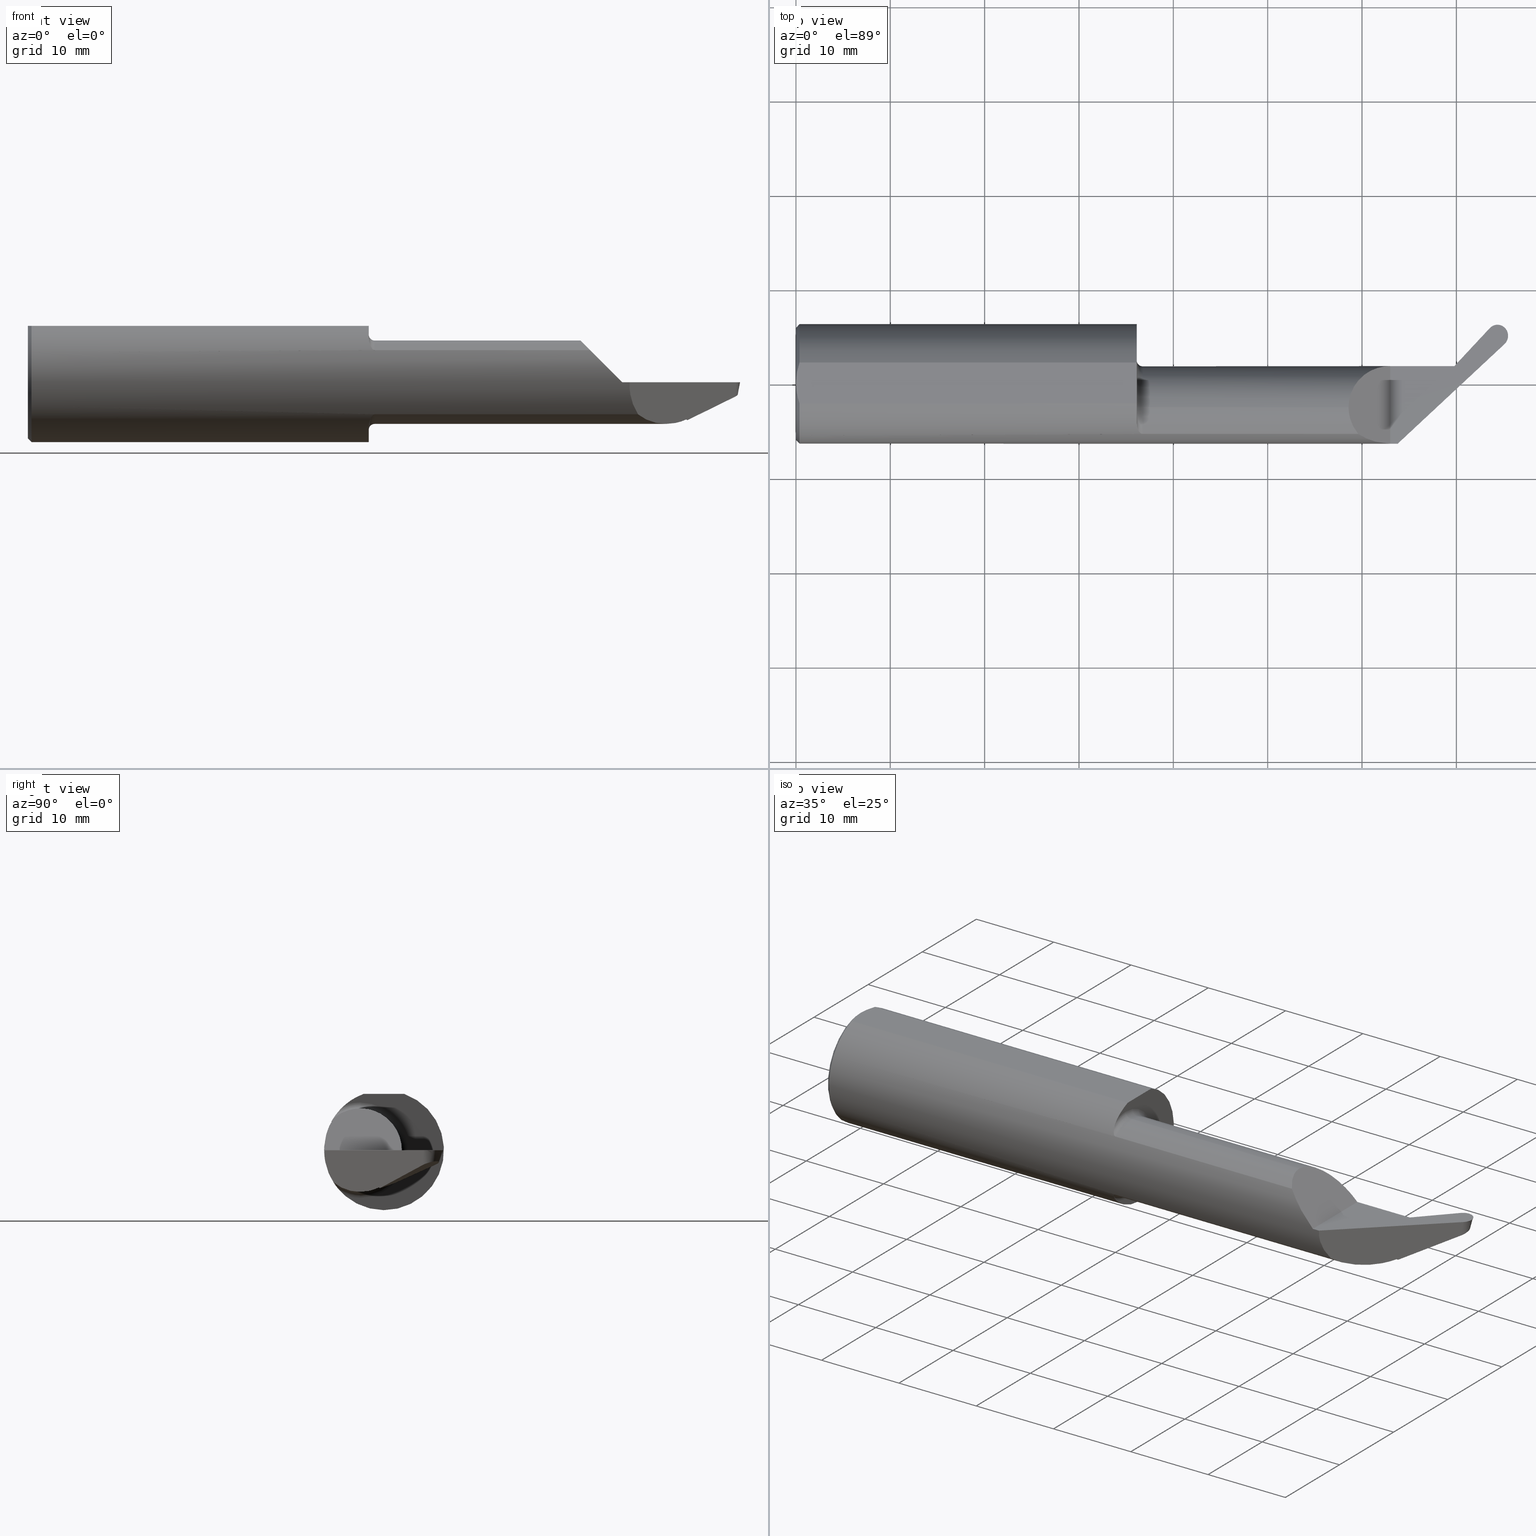
[diagram: canonical four-view strip — front | top / right | iso, engineering-drawing reading convention]
A machine part, canonical four-view strip (front | top / right | iso — engineering-drawing reading convention). The complete STEP part file that produces these views, byte-faithful:
ISO-10303-21;
HEADER;
FILE_DESCRIPTION (( 'STEP AP203' ),
    '1' );
FILE_NAME ('UP50062-24.STEP',
    '2025-06-18T21:04:55',
    ( '' ),
    ( '' ),
    'SwSTEP 2.0',
    'SolidWorks 2024',
    '' );
FILE_SCHEMA (( 'CONFIG_CONTROL_DESIGN' ));
ENDSEC;

DATA;
#1 = ORIENTED_EDGE ( 'NONE', *, *, #553, .F. ) ;
#2 = CARTESIAN_POINT ( 'NONE',  ( 2.508211166450760476, -0.2498500000000000443, -0.04776250763339680988 ) ) ;
#3 = CARTESIAN_POINT ( 'NONE',  ( 0.000000000000000000, 0.000000000000000000, 0.000000000000000000 ) ) ;
#4 = AXIS2_PLACEMENT_3D ( 'NONE', #523, #318, #189 ) ;
#5 = AXIS2_PLACEMENT_3D ( 'NONE', #478, #603, #557 ) ;
#6 = DIRECTION ( 'NONE',  ( 1.000000000000000000, 0.000000000000000000, 0.000000000000000000 ) ) ;
#7 = CC_DESIGN_DATE_AND_TIME_ASSIGNMENT ( #273, #201, ( #96 ) ) ;
#8 = CARTESIAN_POINT ( 'NONE',  ( 1.422000000000000597, -0.1692143377402382520, 0.1839442983303241075 ) ) ;
#9 = CARTESIAN_POINT ( 'NONE',  ( 2.955937092707650926, 0.1681739342129495440, -0.05813594538523057798 ) ) ;
#10 = CARTESIAN_POINT ( 'NONE',  ( 2.899611671649573008, 0.2375721085925628639, -5.549066237130534971E-17 ) ) ;
#11 = DIMENSIONAL_EXPONENTS ( 1.000000000000000000, 0.000000000000000000, 0.000000000000000000, 0.000000000000000000, 0.000000000000000000, 0.000000000000000000, 0.000000000000000000 ) ;
#12 = PERSON_AND_ORGANIZATION ( #227, #509 ) ;
#13 = CARTESIAN_POINT ( 'NONE',  ( 2.753503846750914530, -0.006450818874086416618, -0.1551777867982201131 ) ) ;
#14 = EDGE_CURVE ( 'NONE', #667, #313, #659, .T. ) ;
#15 = ORIENTED_EDGE ( 'NONE', *, *, #763, .T. ) ;
#16 = CARTESIAN_POINT ( 'NONE',  ( 0.000000000000000000, 0.000000000000000000, 0.2348499999999984211 ) ) ;
#17 = CARTESIAN_POINT ( 'NONE',  ( 1.439579013400958729, -0.2089922484211655385, 0.1369264698045204454 ) ) ;
#18 = CARTESIAN_POINT ( 'NONE',  ( 2.909024888715971535, 0.2236180659916154334, -0.05594011878732919191 ) ) ;
#19 = CARTESIAN_POINT ( 'NONE',  ( 2.763300752746059796, 0.02618643636907987127, -0.1442566840611754775 ) ) ;
#20 = ADVANCED_FACE ( 'NONE', ( #764 ), #779, .F. ) ;
#21 =( NAMED_UNIT ( * ) PLANE_ANGLE_UNIT ( ) SI_UNIT ( $, .RADIAN. ) );
#22 = CARTESIAN_POINT ( 'NONE',  ( 2.900081994275833353, 0.2132052924276078565, -0.06332589777077883564 ) ) ;
#23 = CARTESIAN_POINT ( 'NONE',  ( 1.421999999999999931, -0.1642165498247395994, -0.1883028073706252692 ) ) ;
#24 = CARTESIAN_POINT ( 'NONE',  ( 2.738296579641648076, 0.02821845109425510922, -0.1183330138671367104 ) ) ;
#25 = DIRECTION ( 'NONE',  ( 1.000000000000000000, 0.000000000000000000, 0.000000000000000000 ) ) ;
#26 = ORIENTED_EDGE ( 'NONE', *, *, #461, .T. ) ;
#27 = ORIENTED_EDGE ( 'NONE', *, *, #788, .F. ) ;
#28 = CARTESIAN_POINT ( 'NONE',  ( 2.950557606249607279, 0.2634194552119809019, -0.07328879022587991843 ) ) ;
#29 = CARTESIAN_POINT ( 'NONE',  ( 2.480000000000000426, -0.2498499999999999888, -5.549066237130534971E-17 ) ) ;
#30 = CARTESIAN_POINT ( 'NONE',  ( 0.000000000000000000, 0.000000000000000000, 0.2348499999999984211 ) ) ;
#31 = SECURITY_CLASSIFICATION_LEVEL ( 'unclassified' ) ;
#32 = CARTESIAN_POINT ( 'NONE',  ( 3.023482512856840554, 0.2290101454070734843, -0.01345417616766671556 ) ) ;
#33 = DIRECTION ( 'NONE',  ( 0.000000000000000000, 0.000000000000000000, 1.000000000000000000 ) ) ;
#34 = ORIENTED_EDGE ( 'NONE', *, *, #817, .T. ) ;
#35 = CARTESIAN_POINT ( 'NONE',  ( 0.0003471601452190529861, -0.01466881147478106898, 0.2348499999999999477 ) ) ;
#36 = APPLICATION_CONTEXT ( 'configuration controlled 3d designs of mechanical parts and assemblies' ) ;
#37 = COORDINATED_UNIVERSAL_TIME_OFFSET ( 8, 0, .BEHIND. ) ;
#38 = CARTESIAN_POINT ( 'NONE',  ( 2.899889918419833901, 0.2140054179522377920, -0.06076511496828821551 ) ) ;
#39 = LINE ( 'NONE', #489, #442 ) ;
#40 = AXIS2_PLACEMENT_3D ( 'NONE', #617, #223, #95 ) ;
#41 = SHAPE_DEFINITION_REPRESENTATION ( #636, #495 ) ;
#42 = CARTESIAN_POINT ( 'NONE',  ( 1.421999999999999931, -0.09984999999999999432, -0.1989999999999987612 ) ) ;
#43 = EDGE_CURVE ( 'NONE', #307, #499, #77, .T. ) ;
#44 = EDGE_LOOP ( 'NONE', ( #152, #408, #696, #761 ) ) ;
#45 = CARTESIAN_POINT ( 'NONE',  ( 0.01500000000000188856, 0.08526722699841957076, 0.2348499999999999477 ) ) ;
#46 = ADVANCED_FACE ( 'NONE', ( #263 ), #643, .T. ) ;
#47 = ORIENTED_EDGE ( 'NONE', *, *, #258, .F. ) ;
#48 = ORIENTED_EDGE ( 'NONE', *, *, #219, .T. ) ;
#49 = DIRECTION ( 'NONE',  ( -1.000000000000000000, -0.000000000000000000, -0.000000000000000000 ) ) ;
#50 = ORIENTED_EDGE ( 'NONE', *, *, #237, .T. ) ;
#51 = CARTESIAN_POINT ( 'NONE',  ( 1.421999999999999931, 0.08526722699841957076, 0.2348499999999999477 ) ) ;
#52 = VERTEX_POINT ( 'NONE', #460 ) ;
#53 = CARTESIAN_POINT ( 'NONE',  ( 2.956554132233658816, 0.1660001730983144685, -0.0009249373599300829418 ) ) ;
#54 = ORIENTED_EDGE ( 'NONE', *, *, #671, .F. ) ;
#55 = CARTESIAN_POINT ( 'NONE',  ( 2.747209855509363585, -0.02183442268399109210, -0.1555299639813814694 ) ) ;
#56 = FACE_OUTER_BOUND ( 'NONE', #250, .T. ) ;
#57 =( BOUNDED_SURFACE ( )  B_SPLINE_SURFACE ( 3, 3, ( 
 ( #92, #792, #475, #150, #529, #733, #98, #88, #609, #541, #806, #407, #737, #22, #802, #740 ),
 ( #412, #280, #210, #674, #348, #604, #433, #787, #698, #369, #28, #224, #286, #627, #465, #417 ),
 ( #678, #146, #32, #666, #378, #441, #123, #498, #247, #308, #566, #305, #758, #830, #438, #561 ),
 ( #195, #768, #312, #181, #762, #53, #254, #571, #133, #448, #192, #257, #645, #715, #706, #760 ) ),
 .UNSPECIFIED., .F., .F., .T. ) 
 B_SPLINE_SURFACE_WITH_KNOTS ( ( 4, 4 ),
 ( 4, 2, 2, 2, 2, 2, 2, 4 ),
 ( 0.000000000000000000, 1.000000000000000000 ),
 ( -0.1125425015799507988, 0.04453804279078396600, 0.3155953188807445464, 0.3728826097336301881, 1.037438307566329820, 1.594862897479015995, 1.615343486498131753, 1.772424030868866573 ),
 .UNSPECIFIED. ) 
 GEOMETRIC_REPRESENTATION_ITEM ( )  RATIONAL_B_SPLINE_SURFACE ( (
 ( 1.000000000000000000, 1.000000000000000000, 1.000000000000000000, 1.000000000000000000, 1.000000000000000000, 1.000000000000000000, 1.000000000000000000, 1.000000000000000000, 1.000000000000000000, 1.000000000000000000, 1.000000000000000000, 1.000000000000000000, 1.000000000000000000, 1.000000000000000000, 1.000000000000000000, 1.000000000000000000),
 ( 0.3426147761147442794, 0.3426147761147442794, 0.3426147761147405602, 0.3426147761147405602, 0.3426147761147458892, 0.3426147761147458892, 0.3426147761147289028, 0.3426147761147289028, 0.3426147761147487203, 0.3426147761147487203, 0.3426147761147324555, 0.3426147761147324555, 0.3426147761147324555, 0.3426147761147324555, 0.3426147761147405602, 0.3426147761147405602),
 ( 0.3426147761147442794, 0.3426147761147442794, 0.3426147761147405602, 0.3426147761147405602, 0.3426147761147458892, 0.3426147761147458892, 0.3426147761147289028, 0.3426147761147289028, 0.3426147761147487203, 0.3426147761147487203, 0.3426147761147324555, 0.3426147761147324555, 0.3426147761147324555, 0.3426147761147324555, 0.3426147761147405602, 0.3426147761147405602),
 ( 1.000000000000000000, 1.000000000000000000, 1.000000000000000000, 1.000000000000000000, 1.000000000000000000, 1.000000000000000000, 1.000000000000000000, 1.000000000000000000, 1.000000000000000000, 1.000000000000000000, 1.000000000000000000, 1.000000000000000000, 1.000000000000000000, 1.000000000000000000, 1.000000000000000000, 1.000000000000000000) ) ) 
 REPRESENTATION_ITEM ( '' )  SURFACE ( )  );
#58 = CC_DESIGN_APPROVAL ( #710, ( #110 ) ) ;
#59 = CARTESIAN_POINT ( 'NONE',  ( 2.378073159852920337, 0.07414999999999936919, 0.1019268401470810187 ) ) ;
#60 = CARTESIAN_POINT ( 'NONE',  ( 2.691783994665847057, -0.07263796445558691472, -0.1739999999999993219 ) ) ;
#61 = CARTESIAN_POINT ( 'NONE',  ( 1.423856958242080806, -0.1832683170044314414, 0.1699454654953777566 ) ) ;
#62 = EDGE_CURVE ( 'NONE', #697, #527, #810, .T. ) ;
#63 = ORIENTED_EDGE ( 'NONE', *, *, #664, .F. ) ;
#64 = CARTESIAN_POINT ( 'NONE',  ( 2.960434250180871807, 0.2045820455322147902, -0.04760832730742024788 ) ) ;
#65 = LINE ( 'NONE', #324, #593 ) ;
#66 = ADVANCED_FACE ( 'NONE', ( #444 ), #575, .F. ) ;
#67 = CARTESIAN_POINT ( 'NONE',  ( 1.422369308096891327, -0.1740236709404029136, 0.1794003879942955570 ) ) ;
#68 = ORIENTED_EDGE ( 'NONE', *, *, #703, .F. ) ;
#69 = B_SPLINE_CURVE_WITH_KNOTS ( 'NONE', 3,
 ( #699, #330, #200, #656, #797, #326, #91, #344, #80, #339, #395, #411, #24, #335 ),
 .UNSPECIFIED., .F., .F.,
 ( 4, 2, 2, 2, 2, 2, 4 ),
 ( 2.751842732678591713E-17, 0.0009210645519938650888, 0.001381596827990784352, 0.001842129103987703506, 0.002302661379984622444, 0.002763193655981541815, 0.003684258207975379257 ),
 .UNSPECIFIED. ) ;
#70 = CARTESIAN_POINT ( 'NONE',  ( 1.446999999999999842, -0.09985000000000000819, 0.1739999999999987390 ) ) ;
#71 = CARTESIAN_POINT ( 'NONE',  ( 2.934129113859850868, 0.2470809850564593402, -5.549066237130533738E-17 ) ) ;
#72 = PERSON_AND_ORGANIZATION ( #227, #509 ) ;
#73 = DIRECTION ( 'NONE',  ( -1.000000000000000000, 0.000000000000000000, 0.000000000000000000 ) ) ;
#74 = CIRCLE ( 'NONE', #517, 0.1739999999999987390 ) ;
#75 = LOCAL_TIME ( 14, 4, 55.00000000000000000, #732 ) ;
#76 = CARTESIAN_POINT ( 'NONE',  ( 2.319901235500922088, -0.1793692571805432512, 0.1600987644990802261 ) ) ;
#77 = B_SPLINE_CURVE_WITH_KNOTS ( 'NONE', 3,
 ( #193, #722, #447, #139 ),
 .UNSPECIFIED., .F., .F.,
 ( 4, 4 ),
 ( 3.126453557828127840E-07, 0.0001706435259610475277 ),
 .UNSPECIFIED. ) ;
#78 = ADVANCED_FACE ( 'NONE', ( #56 ), #584, .F. ) ;
#79 = APPLICATION_CONTEXT ( 'configuration controlled 3d designs of mechanical parts and assemblies' ) ;
#80 = CARTESIAN_POINT ( 'NONE',  ( 2.729262707662182486, 0.05521386511994685886, -0.07917076052382547580 ) ) ;
#81 = CARTESIAN_POINT ( 'NONE',  ( 1.443666560440262758, -0.2105968497256135719, 0.1344424988095926921 ) ) ;
#82 = CC_DESIGN_PERSON_AND_ORGANIZATION_ASSIGNMENT ( #72, #726, ( #110 ) ) ;
#83 = AXIS2_PLACEMENT_3D ( 'NONE', #647, #640, #132 ) ;
#84 = EDGE_CURVE ( 'NONE', #437, #590, #93, .T. ) ;
#85 = CARTESIAN_POINT ( 'NONE',  ( 2.903287362371042235, 0.2184301656483619014, -0.05875195019451972395 ) ) ;
#86 = AXIS2_PLACEMENT_3D ( 'NONE', #117, #365, #819 ) ;
#87 = PERSON_AND_ORGANIZATION ( #227, #509 ) ;
#88 = CARTESIAN_POINT ( 'NONE',  ( 2.896144737199237262, 0.2296066244279701130, -0.01083382292379483740 ) ) ;
#89 = ORIENTED_EDGE ( 'NONE', *, *, #105, .T. ) ;
#90 = CARTESIAN_POINT ( 'NONE',  ( 2.935805144444479708, 0.2288760288988101188, -0.04769457635119150191 ) ) ;
#91 = CARTESIAN_POINT ( 'NONE',  ( 2.729532060954607875, 0.06263298279816702230, -0.06254356323277124319 ) ) ;
#92 = CARTESIAN_POINT ( 'NONE',  ( 2.893551415171378149, 0.2404095602645662522, 0.02374071751400246358 ) ) ;
#93 = B_SPLINE_CURVE_WITH_KNOTS ( 'NONE', 3,
 ( #142, #8, #67, #61, #784, #205, #589, #513, #327, #17, #274, #81, #773, #336 ),
 .UNSPECIFIED., .F., .F.,
 ( 4, 2, 2, 2, 2, 2, 4 ),
 ( 0.0004288698157893197399, 0.0009336780968993453871, 0.001438486378009370872, 0.001943294659119398091, 0.002195698799674412460, 0.002321900869951926908, 0.002448102940229441790 ),
 .UNSPECIFIED. ) ;
#94 = ORIENTED_EDGE ( 'NONE', *, *, #377, .T. ) ;
#95 = DIRECTION ( 'NONE',  ( 0.6819983600625078024, 0.7313537016191619111, 0.000000000000000000 ) ) ;
#96 = PRODUCT_DEFINITION ( 'UNKNOWN', '', #110, #310 ) ;
#97 = AXIS2_PLACEMENT_3D ( 'NONE', #281, #473, #586 ) ;
#98 = CARTESIAN_POINT ( 'NONE',  ( 2.895262077857247540, 0.2332834960763895682, 0.0009339177542294485731 ) ) ;
#99 = CARTESIAN_POINT ( 'NONE',  ( 2.545554631339530971, -0.2109115923885839516, -0.1339452227446421839 ) ) ;
#100 = ORIENTED_EDGE ( 'NONE', *, *, #375, .F. ) ;
#101 = CARTESIAN_POINT ( 'NONE',  ( 0.01500000000000188856, 0.000000000000000000, -0.2498499999999999888 ) ) ;
#102 = CIRCLE ( 'NONE', #484, 0.2498499999999999888 ) ;
#103 = CARTESIAN_POINT ( 'NONE',  ( 2.097104927754681825, -0.2109115923885839516, 0.1339452227446421839 ) ) ;
#104 = PLANE ( 'NONE',  #309 ) ;
#105 = EDGE_CURVE ( 'NONE', #367, #313, #765, .T. ) ;
#106 = ORIENTED_EDGE ( 'NONE', *, *, #827, .T. ) ;
#107 = PLANE ( 'NONE',  #766 ) ;
#108 = DIRECTION ( 'NONE',  ( -1.000000000000000000, -0.000000000000000000, -0.000000000000000000 ) ) ;
#109 = CARTESIAN_POINT ( 'NONE',  ( 0.005550618807728146739, 0.05757865339283832484, 0.2348499999999999477 ) ) ;
#110 = PRODUCT_DEFINITION_FORMATION_WITH_SPECIFIED_SOURCE ( 'ANY', '', #249, .NOT_KNOWN. ) ;
#111 = DIRECTION ( 'NONE',  ( -0.7313537016191660189, -0.6819983600625031395, 0.000000000000000000 ) ) ;
#112 = ORIENTED_EDGE ( 'NONE', *, *, #399, .T. ) ;
#113 = CARTESIAN_POINT ( 'NONE',  ( 0.01500000000000188856, -0.08526722699841957076, 0.2348499999999999477 ) ) ;
#114 = EDGE_CURVE ( 'NONE', #499, #700, #578, .T. ) ;
#115 = AXIS2_PLACEMENT_3D ( 'NONE', #714, #136, #396 ) ;
#116 = TOROIDAL_SURFACE ( 'NONE', #431, 0.1989999999999987612, 0.02499999999999993894 ) ;
#117 = CARTESIAN_POINT ( 'NONE',  ( 2.747209855509363585, -0.09985000000000000819, 0.000000000000000000 ) ) ;
#118 = VERTEX_POINT ( 'NONE', #129 ) ;
#119 = ORIENTED_EDGE ( 'NONE', *, *, #283, .T. ) ;
#120 = CARTESIAN_POINT ( 'NONE',  ( 1.422000000000000597, -0.1743076965831615865, -0.1795024430660108472 ) ) ;
#121 = CARTESIAN_POINT ( 'NONE',  ( 2.970764410099917097, 0.2139681964820433213, -5.549066237130534971E-17 ) ) ;
#122 = ORIENTED_EDGE ( 'NONE', *, *, #514, .F. ) ;
#123 = CARTESIAN_POINT ( 'NONE',  ( 3.017350786043962341, 0.2240484867778150813, -0.02929289433091577730 ) ) ;
#124 = VERTEX_POINT ( 'NONE', #573 ) ;
#125 = B_SPLINE_CURVE_WITH_KNOTS ( 'NONE', 3,
 ( #591, #85, #18, #154, #598, #276, #272, #786, #90, #207, #596, #144, #463, #728, #459, #719, #265, #410, #64, #338, #323, #581, #649, #9, #212 ),
 .UNSPECIFIED., .F., .F.,
 ( 4, 1, 1, 2, 2, 2, 1, 2, 2, 1, 1, 2, 2, 2, 4 ),
 ( 0.000000000000000000, 0.1250000000000047462, 0.1875000000000073275, 0.2187500000000085765, 0.2500000000000098810, 0.3749999999999797939, 0.4374999999999704126, 0.4687499999999711897, 0.4999999999999719114, 0.5624999999999739098, 0.5937499999999753530, 0.6093749999999763522, 0.6249999999999774625, 0.7499999999999849010, 1.000000000000000000 ),
 .UNSPECIFIED. ) ;
#126 = LINE ( 'NONE', #638, #775 ) ;
#127 = ORIENTED_EDGE ( 'NONE', *, *, #399, .F. ) ;
#128 = CARTESIAN_POINT ( 'NONE',  ( 1.421999999999999931, 0.000000000000000000, 0.000000000000000000 ) ) ;
#129 = CARTESIAN_POINT ( 'NONE',  ( 1.446999999999999842, -0.2109115923885835353, -0.1339452227446417121 ) ) ;
#130 = CARTESIAN_POINT ( 'NONE',  ( 0.000000000000000000, 0.000000000000000000, 0.000000000000000000 ) ) ;
#131 = LINE ( 'NONE', #138, #260 ) ;
#132 = DIRECTION ( 'NONE',  ( -1.000000000000000000, 0.000000000000000000, 0.000000000000000000 ) ) ;
#133 = CARTESIAN_POINT ( 'NONE',  ( 2.953346954451138373, 0.1641224005562987309, -0.02423410552984890318 ) ) ;
#134 = CARTESIAN_POINT ( 'NONE',  ( 2.720501376327327581, -0.04615791066147757749, -0.1677308988258701672 ) ) ;
#135 = EDGE_CURVE ( 'NONE', #393, #387, #147, .T. ) ;
#136 = DIRECTION ( 'NONE',  ( -1.000000000000000000, -0.000000000000000000, -0.000000000000000000 ) ) ;
#137 = DIRECTION ( 'NONE',  ( -1.000000000000000000, -0.000000000000000000, -0.000000000000000000 ) ) ;
#138 = CARTESIAN_POINT ( 'NONE',  ( 3.000000000000000444, -0.08526722699841955688, 0.2348499999999999477 ) ) ;
#139 = CARTESIAN_POINT ( 'NONE',  ( 2.751504638639513445, -0.01768368298314663273, -0.1585832699261198464 ) ) ;
#140 = ORIENTED_EDGE ( 'NONE', *, *, #492, .F. ) ;
#141 = CARTESIAN_POINT ( 'NONE',  ( 2.346054777255360158, -0.2109115923885840072, 0.1339452227446421284 ) ) ;
#142 = CARTESIAN_POINT ( 'NONE',  ( 1.421999999999999931, -0.1642165498247395994, 0.1883028073706252692 ) ) ;
#143 = ORIENTED_EDGE ( 'NONE', *, *, #712, .F. ) ;
#144 = CARTESIAN_POINT ( 'NONE',  ( 2.949837139828726418, 0.2213663653208153836, -0.04601595107234730808 ) ) ;
#145 = APPLICATION_PROTOCOL_DEFINITION ( 'international standard', 'config_control_design', 1994, #79 ) ;
#146 = CARTESIAN_POINT ( 'NONE',  ( 3.024370373341859430, 0.2297285826061250813, -0.01116076479803358029 ) ) ;
#147 = CIRCLE ( 'NONE', #216, 0.2348499999999984211 ) ;
#148 = APPROVAL_PERSON_ORGANIZATION ( #267, #774, #518 ) ;
#149 = COORDINATED_UNIVERSAL_TIME_OFFSET ( 8, 0, .BEHIND. ) ;
#150 = CARTESIAN_POINT ( 'NONE',  ( 2.894459087722234703, 0.2366284917271536947, 0.01163949715835381656 ) ) ;
#151 = CC_DESIGN_PERSON_AND_ORGANIZATION_ASSIGNMENT ( #12, #406, ( #96 ) ) ;
#152 = ORIENTED_EDGE ( 'NONE', *, *, #370, .F. ) ;
#153 = ORIENTED_EDGE ( 'NONE', *, *, #377, .F. ) ;
#154 = CARTESIAN_POINT ( 'NONE',  ( 2.916841050183413220, 0.2271344792904483323, -0.05302350138083248426 ) ) ;
#155 = CALENDAR_DATE ( 2025, 18, 6 ) ;
#156 = LINE ( 'NONE', #103, #694 ) ;
#157 = DIRECTION ( 'NONE',  ( 0.5720007877782445904, 0.7467417517062161503, 0.3393992560978874584 ) ) ;
#158 = VERTEX_POINT ( 'NONE', #401 ) ;
#159 = DIRECTION ( 'NONE',  ( 1.000000000000000000, 0.000000000000000000, 0.000000000000000000 ) ) ;
#160 = B_SPLINE_CURVE_WITH_KNOTS ( 'NONE', 3,
 ( #354, #612, #35, #485, #235, #747, #169, #113 ),
 .UNSPECIFIED., .F., .F.,
 ( 4, 2, 2, 4 ),
 ( 0.007188111787249047702, 0.007736101870951913456, 0.008284091954654779211, 0.009380072122060510720 ),
 .UNSPECIFIED. ) ;
#161 = EDGE_CURVE ( 'NONE', #590, #360, #156, .T. ) ;
#162 = CARTESIAN_POINT ( 'NONE',  ( 2.913796884223085026, 0.1298489285363519097, -0.07884494127364100047 ) ) ;
#163 = FACE_OUTER_BOUND ( 'NONE', #409, .T. ) ;
#164 = VERTEX_POINT ( 'NONE', #231 ) ;
#165 = DIRECTION ( 'NONE',  ( 1.000000000000000000, 0.000000000000000000, 0.000000000000000000 ) ) ;
#166 = FACE_OUTER_BOUND ( 'NONE', #789, .T. ) ;
#167 = DIRECTION ( 'NONE',  ( 0.6819983600625063591, 0.5357604036067457054, -0.4978343367016669907 ) ) ;
#168 = ORIENTED_EDGE ( 'NONE', *, *, #432, .T. ) ;
#169 = CARTESIAN_POINT ( 'NONE',  ( 0.01031857118576193569, -0.07154970585445760700, 0.2348500000000000587 ) ) ;
#170 = APPROVAL_STATUS ( 'not_yet_approved' ) ;
#171 = CARTESIAN_POINT ( 'NONE',  ( 2.480000000000000426, 0.07414999999999932756, -5.549066237130534971E-17 ) ) ;
#172 = ORIENTED_EDGE ( 'NONE', *, *, #219, .F. ) ;
#173 = EDGE_CURVE ( 'NONE', #118, #347, #187, .T. ) ;
#174 = DIRECTION ( 'NONE',  ( -0.7064334285460631691, 0.6587598294711664026, -0.2588190451025079164 ) ) ;
#175 = CIRCLE ( 'NONE', #184, 0.1989999999999987612 ) ;
#176 = CARTESIAN_POINT ( 'NONE',  ( 2.386373634735574623, -0.2365171946451300189, 0.09362636526442749685 ) ) ;
#177 = ORIENTED_EDGE ( 'NONE', *, *, #466, .T. ) ;
#178 = DIRECTION ( 'NONE',  ( 0.7071067811865547892, 0.000000000000000000, -0.7071067811865402453 ) ) ;
#179 = CARTESIAN_POINT ( 'NONE',  ( 2.921874253656272735, 0.2469210718379099834, -5.549066237130535587E-17 ) ) ;
#180 = EDGE_LOOP ( 'NONE', ( #182, #435, #632, #54, #611, #94, #106, #559, #242 ) ) ;
#181 = CARTESIAN_POINT ( 'NONE',  ( 2.957885715627777135, 0.1667798026993071725, 0.008752761654611298722 ) ) ;
#182 = ORIENTED_EDGE ( 'NONE', *, *, #793, .F. ) ;
#183 = FACE_OUTER_BOUND ( 'NONE', #458, .T. ) ;
#184 = AXIS2_PLACEMENT_3D ( 'NONE', #220, #597, #730 ) ;
#185 = ORIENTED_EDGE ( 'NONE', *, *, #194, .T. ) ;
#186 = DIRECTION ( 'NONE',  ( 0.000000000000000000, 0.000000000000000000, 1.000000000000000000 ) ) ;
#187 = B_SPLINE_CURVE_WITH_KNOTS ( 'NONE', 3,
 ( #282, #340, #482, #289, #744, #345, #214, #662, #351, #479, #120, #537 ),
 .UNSPECIFIED., .F., .F.,
 ( 4, 2, 2, 2, 2, 4 ),
 ( 1.963928090177221783E-07, 0.0001286476382168975333, 0.0002570988836247773356, 0.0005140013744405380787, 0.001027806356072059456, 0.002055416319335093538 ),
 .UNSPECIFIED. ) ;
#188 = CONICAL_SURFACE ( 'NONE', #470, 0.2498499999999999888, 0.7853981633974380649 ) ;
#189 = DIRECTION ( 'NONE',  ( 0.000000000000000000, 0.000000000000000000, 1.000000000000000000 ) ) ;
#190 =( GEOMETRIC_REPRESENTATION_CONTEXT ( 3 ) GLOBAL_UNCERTAINTY_ASSIGNED_CONTEXT ( ( #828 ) ) GLOBAL_UNIT_ASSIGNED_CONTEXT ( ( #522, #21, #279 ) ) REPRESENTATION_CONTEXT ( 'NONE', 'WORKASPACE' ) );
#191 = EDGE_CURVE ( 'NONE', #414, #477, #533, .T. ) ;
#192 = CARTESIAN_POINT ( 'NONE',  ( 2.949393970298635370, 0.1618079653724878442, -0.05296365488184685139 ) ) ;
#193 = CARTESIAN_POINT ( 'NONE',  ( 2.747209855509363585, -0.02183442268399109210, -0.1555299639813814694 ) ) ;
#194 = EDGE_CURVE ( 'NONE', #759, #499, #600, .T. ) ;
#195 = CARTESIAN_POINT ( 'NONE',  ( 2.959534747762814000, 0.1677452955637647181, 0.02073761873448432339 ) ) ;
#196 = CARTESIAN_POINT ( 'NONE',  ( 2.895332127941879552, 0.2329916902143778779, -5.549066237130534971E-17 ) ) ;
#197 = CARTESIAN_POINT ( 'NONE',  ( 1.446999999999999842, -0.09985000000000000819, 0.000000000000000000 ) ) ;
#198 = AXIS2_PLACEMENT_3D ( 'NONE', #790, #388, #217 ) ;
#199 = CARTESIAN_POINT ( 'NONE',  ( 2.662602659211939837, -0.09984999999999999432, -0.1739999999999993496 ) ) ;
#200 = CARTESIAN_POINT ( 'NONE',  ( 2.737784481426325023, 0.07310948323515023550, -0.02234505378485568058 ) ) ;
#201 = DATE_TIME_ROLE ( 'creation_date' ) ;
#202 = ORIENTED_EDGE ( 'NONE', *, *, #511, .T. ) ;
#203 = ORIENTED_EDGE ( 'NONE', *, *, #173, .T. ) ;
#204 = LINE ( 'NONE', #342, #689 ) ;
#205 = CARTESIAN_POINT ( 'NONE',  ( 1.428161608761568946, -0.1960654850943063521, 0.1550025169876981246 ) ) ;
#206 = ORIENTED_EDGE ( 'NONE', *, *, #343, .F. ) ;
#207 = CARTESIAN_POINT ( 'NONE',  ( 2.943291903478004734, 0.2258680402188189829, -0.04654189394298079846 ) ) ;
#208 =( BOUNDED_CURVE ( )  B_SPLINE_CURVE ( 3, ( #29, #815, #176, #428 ),
 .UNSPECIFIED., .F., .T. ) 
 B_SPLINE_CURVE_WITH_KNOTS ( ( 4, 4 ),
 ( 4.712388980384689674, 5.278202291926584522 ),
 .UNSPECIFIED. ) 
 CURVE ( )  GEOMETRIC_REPRESENTATION_ITEM ( )  RATIONAL_B_SPLINE_CURVE ( ( 1.000000000000000000, 0.9734987392630297665, 0.9734987392630297665, 1.000000000000000000 ) ) 
 REPRESENTATION_ITEM ( '' )  );
#209 = DIRECTION ( 'NONE',  ( 0.000000000000000000, 0.000000000000000000, 1.000000000000000000 ) ) ;
#210 = CARTESIAN_POINT ( 'NONE',  ( 2.960339424125598917, 0.2985465864050801943, -0.01058034537950984164 ) ) ;
#211 = ORIENTED_EDGE ( 'NONE', *, *, #671, .T. ) ;
#212 = CARTESIAN_POINT ( 'NONE',  ( 2.948155640226707508, 0.1610829347179065230, -0.06196360619533394093 ) ) ;
#213 = PERSON_AND_ORGANIZATION ( #227, #509 ) ;
#214 = CARTESIAN_POINT ( 'NONE',  ( 1.434535956346823848, -0.2051861511868732224, -0.1425927214055004721 ) ) ;
#215 = ORIENTED_EDGE ( 'NONE', *, *, #43, .T. ) ;
#216 = AXIS2_PLACEMENT_3D ( 'NONE', #3, #259, #510 ) ;
#217 = DIRECTION ( 'NONE',  ( 0.000000000000000000, 0.000000000000000000, -1.000000000000000000 ) ) ;
#218 = AXIS2_PLACEMENT_3D ( 'NONE', #371, #6, #713 ) ;
#219 = EDGE_CURVE ( 'NONE', #158, #667, #175, .T. ) ;
#220 = CARTESIAN_POINT ( 'NONE',  ( 1.421999999999999931, -0.09985000000000000819, 0.000000000000000000 ) ) ;
#221 = ORIENTED_EDGE ( 'NONE', *, *, #782, .T. ) ;
#222 = ADVANCED_FACE ( 'NONE', ( #166 ), #57, .T. ) ;
#223 = DIRECTION ( 'NONE',  ( 0.7064334285460601714, -0.6587598294711697333, 0.2588190451025079719 ) ) ;
#224 = CARTESIAN_POINT ( 'NONE',  ( 2.949227694561130431, 0.2586436576099774287, -0.08181447479941324208 ) ) ;
#225 = CARTESIAN_POINT ( 'NONE',  ( 2.898370654927180379, 0.2203341753729542440, -0.04051007664551185827 ) ) ;
#226 = ORIENTED_EDGE ( 'NONE', *, *, #817, .F. ) ;
#227 = PERSON ( 'UNSPECIFIED', 'UNSPECIFIED', 'UNSPECIFIED', ('UNSPECIFIED'), ('UNSPECIFIED'), ('UNSPECIFIED') ) ;
#228 = DIRECTION ( 'NONE',  ( 0.000000000000000000, 0.000000000000000000, -1.000000000000000000 ) ) ;
#229 = CIRCLE ( 'NONE', #570, 0.1989999999999987612 ) ;
#230 = APPROVAL_ROLE ( '' ) ;
#231 = CARTESIAN_POINT ( 'NONE',  ( 1.421999999999999931, -0.08526722699841958464, 0.2348499999999999477 ) ) ;
#232 = DIRECTION ( 'NONE',  ( -1.000000000000000000, -0.000000000000000000, -0.000000000000000000 ) ) ;
#233 = ADVANCED_FACE ( 'NONE', ( #183 ), #751, .T. ) ;
#234 = ORIENTED_EDGE ( 'NONE', *, *, #574, .T. ) ;
#235 = CARTESIAN_POINT ( 'NONE',  ( 0.002689315299820877608, -0.03632005764864067177, 0.2348499999999999199 ) ) ;
#236 = CC_DESIGN_PERSON_AND_ORGANIZATION_ASSIGNMENT ( #213, #729, ( #249 ) ) ;
#237 = EDGE_CURVE ( 'NONE', #724, #477, #613, .T. ) ;
#238 = DATE_AND_TIME ( #683, #545 ) ;
#239 = LINE ( 'NONE', #487, #471 ) ;
#240 = DIRECTION ( 'NONE',  ( 0.000000000000000000, -1.000000000000000000, 0.000000000000000000 ) ) ;
#241 = CARTESIAN_POINT ( 'NONE',  ( 1.446999999999999842, -0.09985000000000000819, 0.000000000000000000 ) ) ;
#242 = ORIENTED_EDGE ( 'NONE', *, *, #712, .T. ) ;
#243 = LINE ( 'NONE', #416, #811 ) ;
#244 = AXIS2_PLACEMENT_3D ( 'NONE', #736, #137, #796 ) ;
#245 = DIRECTION ( 'NONE',  ( 0.000000000000000000, 0.000000000000000000, 1.000000000000000000 ) ) ;
#246 = ORIENTED_EDGE ( 'NONE', *, *, #43, .F. ) ;
#247 = CARTESIAN_POINT ( 'NONE',  ( 3.009514496610727008, 0.2177075335235212072, -0.04953462778872387562 ) ) ;
#248 = CARTESIAN_POINT ( 'NONE',  ( 2.948155640226707508, 0.1610829347179065230, -0.06196360619533394093 ) ) ;
#249 = PRODUCT ( 'UP50062-24', 'UP50062-24', '', ( #583 ) ) ;
#250 = EDGE_LOOP ( 'NONE', ( #422, #221, #47, #153, #140, #501 ) ) ;
#251 = EDGE_CURVE ( 'NONE', #164, #437, #493, .T. ) ;
#252 = CARTESIAN_POINT ( 'NONE',  ( 1.446999999999999842, -0.09985000000000000819, 0.000000000000000000 ) ) ;
#253 = ORIENTED_EDGE ( 'NONE', *, *, #194, .F. ) ;
#254 = CARTESIAN_POINT ( 'NONE',  ( 2.956426867351054533, 0.1659256607019598262, -0.001849874719836839491 ) ) ;
#255 = EDGE_LOOP ( 'NONE', ( #425, #376, #68, #734, #491, #680 ) ) ;
#256 = EDGE_CURVE ( 'NONE', #667, #347, #229, .T. ) ;
#257 = CARTESIAN_POINT ( 'NONE',  ( 2.948110142181342930, 0.1610562960386359710, -0.06229427747783899960 ) ) ;
#258 = EDGE_CURVE ( 'NONE', #718, #429, #709, .T. ) ;
#259 = DIRECTION ( 'NONE',  ( -1.000000000000000000, -0.000000000000000000, -0.000000000000000000 ) ) ;
#260 = VECTOR ( 'NONE', #49, 39.37007874015748143 ) ;
#261 = CARTESIAN_POINT ( 'NONE',  ( 2.747209855509363585, -0.09985000000000000819, 0.000000000000000000 ) ) ;
#262 = FACE_OUTER_BOUND ( 'NONE', #794, .T. ) ;
#263 = FACE_OUTER_BOUND ( 'NONE', #569, .T. ) ;
#264 = ORIENTED_EDGE ( 'NONE', *, *, #366, .F. ) ;
#265 = CARTESIAN_POINT ( 'NONE',  ( 2.959352714252372785, 0.2078202206671223295, -0.04705328208789393007 ) ) ;
#266 = CARTESIAN_POINT ( 'NONE',  ( 2.662602659211939837, -0.09984999999999999432, -0.1739999999999993496 ) ) ;
#267 = PERSON_AND_ORGANIZATION ( #227, #509 ) ;
#268 = CARTESIAN_POINT ( 'NONE',  ( 2.756322479596138741, 0.004553137263631257953, -0.1516203248390486091 ) ) ;
#269 = PRODUCT_RELATED_PRODUCT_CATEGORY ( 'detail', '', ( #249 ) ) ;
#270 = AXIS2_PLACEMENT_3D ( 'NONE', #128, #635, #702 ) ;
#271 = VERTEX_POINT ( 'NONE', #51 ) ;
#272 = CARTESIAN_POINT ( 'NONE',  ( 2.924071259958871849, 0.2288138142516744078, -0.05073048908672460333 ) ) ;
#273 = DATE_AND_TIME ( #661, #75 ) ;
#274 = CARTESIAN_POINT ( 'NONE',  ( 1.440816232719195789, -0.2096312696626586314, 0.1359431843828213526 ) ) ;
#275 = ORIENTED_EDGE ( 'NONE', *, *, #14, .T. ) ;
#276 = CARTESIAN_POINT ( 'NONE',  ( 2.922878319622987497, 0.2286196713913369039, -0.05108747689203741588 ) ) ;
#277 = CARTESIAN_POINT ( 'NONE',  ( 2.767478795634870536, 0.03684827362462991113, -0.1404374061272531948 ) ) ;
#278 = CARTESIAN_POINT ( 'NONE',  ( 2.745888439377188739, 0.02516030885773554160, -0.1210843971761494942 ) ) ;
#279 =( NAMED_UNIT ( * ) SI_UNIT ( $, .STERADIAN. ) SOLID_ANGLE_UNIT ( ) );
#280 = CARTESIAN_POINT ( 'NONE',  ( 2.960700907738524013, 0.2998446970892337249, -0.008262977024470581286 ) ) ;
#281 = CARTESIAN_POINT ( 'NONE',  ( 3.805211594117096308, 1.657282468372984985, -0.7901417016499496793 ) ) ;
#282 = CARTESIAN_POINT ( 'NONE',  ( 1.446999999999999842, -0.2109115923885835353, -0.1339452227446417121 ) ) ;
#283 = EDGE_CURVE ( 'NONE', #590, #367, #705, .T. ) ;
#284 = EDGE_LOOP ( 'NONE', ( #624, #112, #185, #520 ) ) ;
#285 = CARTESIAN_POINT ( 'NONE',  ( 2.895332127941879552, 0.2329916902143778779, -5.549066237130534971E-17 ) ) ;
#286 = CARTESIAN_POINT ( 'NONE',  ( 2.949180563343559491, 0.2584744064049346868, -0.08211661959447559556 ) ) ;
#287 = PLANE ( 'NONE',  #363 ) ;
#288 = APPROVAL_DATE_TIME ( #238, #314 ) ;
#289 = CARTESIAN_POINT ( 'NONE',  ( 1.440784743460165940, -0.2096175062667601507, -0.1359644531973572545 ) ) ;
#290 = CARTESIAN_POINT ( 'NONE',  ( 2.097104927754681825, -0.2109115923885839516, -0.1339452227446421839 ) ) ;
#291 = ORIENTED_EDGE ( 'NONE', *, *, #827, .F. ) ;
#292 = CARTESIAN_POINT ( 'NONE',  ( 1.421999999999999931, 0.000000000000000000, 0.000000000000000000 ) ) ;
#293 = COORDINATED_UNIVERSAL_TIME_OFFSET ( 8, 0, .BEHIND. ) ;
#294 = FACE_OUTER_BOUND ( 'NONE', #341, .T. ) ;
#295 = VERTEX_POINT ( 'NONE', #512 ) ;
#296 = AXIS2_PLACEMENT_3D ( 'NONE', #519, #770, #385 ) ;
#297 = LINE ( 'NONE', #101, #824 ) ;
#298 = VECTOR ( 'NONE', #542, 39.37007874015748143 ) ;
#299 = CARTESIAN_POINT ( 'NONE',  ( 1.421999999999999931, -0.09985000000000000819, 0.000000000000000000 ) ) ;
#300 = ORIENTED_EDGE ( 'NONE', *, *, #251, .T. ) ;
#301 = DIRECTION ( 'NONE',  ( 0.000000000000000000, 0.000000000000000000, -1.000000000000000000 ) ) ;
#302 = CARTESIAN_POINT ( 'NONE',  ( 2.896851391434529965, 0.2266629327936660887, -0.02025503832275597424 ) ) ;
#303 = ORIENTED_EDGE ( 'NONE', *, *, #782, .F. ) ;
#304 = EDGE_CURVE ( 'NONE', #527, #271, #126, .T. ) ;
#305 = CARTESIAN_POINT ( 'NONE',  ( 2.996190361159995597, 0.2069259358343090993, -0.08395188619115417916 ) ) ;
#306 = CARTESIAN_POINT ( 'NONE',  ( 2.971947113069847823, 0.2049067688292483813, -5.549066237130536203E-17 ) ) ;
#307 = VERTEX_POINT ( 'NONE', #55 ) ;
#308 = CARTESIAN_POINT ( 'NONE',  ( 3.002607543141889490, 0.2121185785152872594, -0.06737581554772185954 ) ) ;
#309 = AXIS2_PLACEMENT_3D ( 'NONE', #803, #555, #111 ) ;
#310 = DESIGN_CONTEXT ( 'detailed design', #79, 'design' ) ;
#311 = ORIENTED_EDGE ( 'NONE', *, *, #62, .F. ) ;
#312 = CARTESIAN_POINT ( 'NONE',  ( 2.958836832509954551, 0.1673366727223293271, 0.01566530123285851672 ) ) ;
#313 = VERTEX_POINT ( 'NONE', #315 ) ;
#314 = APPROVAL ( #170, 'UNSPECIFIED' ) ;
#315 = CARTESIAN_POINT ( 'NONE',  ( 1.446999999999999842, -0.09984999999999999432, -0.1739999999999987390 ) ) ;
#316 = EDGE_CURVE ( 'NONE', #295, #585, #669, .T. ) ;
#317 = CIRCLE ( 'NONE', #244, 0.1989999999999987612 ) ;
#318 = DIRECTION ( 'NONE',  ( -0.000000000000000000, 1.000000000000000000, 1.224646799147353207E-16 ) ) ;
#319 = CARTESIAN_POINT ( 'NONE',  ( 2.480000000000000426, 0.07414999999999932756, -5.549066237130534971E-17 ) ) ;
#320 = CARTESIAN_POINT ( 'NONE',  ( 2.747209855509363585, -0.02183442268399109210, -0.1555299639813814694 ) ) ;
#321 = VECTOR ( 'NONE', #526, 39.37007874015748854 ) ;
#322 = DIRECTION ( 'NONE',  ( 0.000000000000000000, 0.000000000000000000, -1.000000000000000000 ) ) ;
#323 = CARTESIAN_POINT ( 'NONE',  ( 2.962114472008769539, 0.1982224847716295979, -0.04881262921263117283 ) ) ;
#324 = CARTESIAN_POINT ( 'NONE',  ( 1.421999999999999931, -0.09984999999999999432, -0.1739999999999993496 ) ) ;
#325 =( BOUNDED_CURVE ( )  B_SPLINE_CURVE ( 3, ( #398, #658, #278, #467 ),
 .UNSPECIFIED., .F., .T. ) 
 B_SPLINE_CURVE_WITH_KNOTS ( ( 4, 4 ),
 ( 2.705056901956456983, 2.767232025981801513 ),
 .UNSPECIFIED. ) 
 CURVE ( )  GEOMETRIC_REPRESENTATION_ITEM ( )  RATIONAL_B_SPLINE_CURVE ( ( 1.000000000000000000, 0.9996778804396316831, 0.9996778804396316831, 1.000000000000000000 ) ) 
 REPRESENTATION_ITEM ( '' )  );
#326 = CARTESIAN_POINT ( 'NONE',  ( 2.730090487902291585, 0.06468878021623208907, -0.05690967836276651648 ) ) ;
#327 = CARTESIAN_POINT ( 'NONE',  ( 1.436292829746335320, -0.2068995363356213868, 0.1400856398677407522 ) ) ;
#328 = ORIENTED_EDGE ( 'NONE', *, *, #763, .F. ) ;
#329 = DIRECTION ( 'NONE',  ( -1.000000000000000000, -0.000000000000000000, -0.000000000000000000 ) ) ;
#330 = CARTESIAN_POINT ( 'NONE',  ( 2.742027741118144846, 0.07414999999999941083, -0.01106816904816652729 ) ) ;
#331 = PERSON_AND_ORGANIZATION ( #227, #509 ) ;
#332 = DIRECTION ( 'NONE',  ( -0.000000000000000000, 0.000000000000000000, -1.000000000000000000 ) ) ;
#333 = CARTESIAN_POINT ( 'NONE',  ( 0.000000000000000000, 0.000000000000000000, -0.2348499999999984211 ) ) ;
#334 = VECTOR ( 'NONE', #469, 39.37007874015748143 ) ;
#335 = CARTESIAN_POINT ( 'NONE',  ( 2.742935276533842170, 0.02000971208805564158, -0.1261334587576533328 ) ) ;
#336 = CARTESIAN_POINT ( 'NONE',  ( 1.446999999999999842, -0.2109115923885835353, 0.1339452227446417121 ) ) ;
#337 = CIRCLE ( 'NONE', #86, 0.1739999999999999880 ) ;
#338 = CARTESIAN_POINT ( 'NONE',  ( 2.960638247896719921, 0.2038707456120201489, -0.04773888955563546088 ) ) ;
#339 = CARTESIAN_POINT ( 'NONE',  ( 2.730269418181519026, 0.04932269850192620014, -0.08977927160270024465 ) ) ;
#340 = CARTESIAN_POINT ( 'NONE',  ( 1.445283494997617435, -0.2109115923885847843, -0.1339452227446408794 ) ) ;
#341 = EDGE_LOOP ( 'NONE', ( #543, #172, #668, #89 ) ) ;
#342 = CARTESIAN_POINT ( 'NONE',  ( 1.421999999999999931, 0.07414999999999931368, -5.549066237130534971E-17 ) ) ;
#343 = EDGE_CURVE ( 'NONE', #387, #393, #544, .T. ) ;
#344 = CARTESIAN_POINT ( 'NONE',  ( 2.729115166841886264, 0.05790952544215695330, -0.07365018080837626435 ) ) ;
#345 = CARTESIAN_POINT ( 'NONE',  ( 1.436241547894474557, -0.2068583287092652934, -0.1401468808397427213 ) ) ;
#346 = ORIENTED_EDGE ( 'NONE', *, *, #432, .F. ) ;
#347 = VERTEX_POINT ( 'NONE', #23 ) ;
#348 = CARTESIAN_POINT ( 'NONE',  ( 2.958730392462001202, 0.2927684511898913655, -0.02089538851442378914 ) ) ;
#349 = DIRECTION ( 'NONE',  ( 0.000000000000000000, 0.000000000000000000, 1.000000000000000000 ) ) ;
#350 = PLANE ( 'NONE',  #506 ) ;
#351 = CARTESIAN_POINT ( 'NONE',  ( 1.428143744967449447, -0.1960236850867127512, -0.1550539425161153451 ) ) ;
#352 = CARTESIAN_POINT ( 'NONE',  ( 2.480000000000000426, -0.2498499999999999888, -5.549066237130534971E-17 ) ) ;
#353 = ORIENTED_EDGE ( 'NONE', *, *, #539, .F. ) ;
#354 = CARTESIAN_POINT ( 'NONE',  ( 0.000000000000000000, 0.000000000000000000, 0.2348499999999984211 ) ) ;
#355 = CARTESIAN_POINT ( 'NONE',  ( 1.421999999999999931, -0.09985000000000000819, 0.000000000000000000 ) ) ;
#356 =( BOUNDED_CURVE ( )  B_SPLINE_CURVE ( 3, ( #528, #76, #776, #524 ),
 .UNSPECIFIED., .F., .T. ) 
 B_SPLINE_CURVE_WITH_KNOTS ( ( 4, 4 ),
 ( 5.590916938044846241, 6.283185307179586232 ),
 .UNSPECIFIED. ) 
 CURVE ( )  GEOMETRIC_REPRESENTATION_ITEM ( )  RATIONAL_B_SPLINE_CURVE ( ( 1.000000000000000000, 0.9604608466326333138, 0.9604608466326333138, 1.000000000000000000 ) ) 
 REPRESENTATION_ITEM ( '' )  );
#357 = DIRECTION ( 'NONE',  ( -1.000000000000000000, -0.000000000000000000, -0.000000000000000000 ) ) ;
#358 = CC_DESIGN_APPROVAL ( #314, ( #530 ) ) ;
#359 = CARTESIAN_POINT ( 'NONE',  ( 1.421999999999999931, -0.09985000000000000819, 0.000000000000000000 ) ) ;
#360 = VERTEX_POINT ( 'NONE', #141 ) ;
#361 = CLOSED_SHELL ( 'NONE', ( #607, #633, #525, #639, #685, #222, #233, #579, #451, #46, #20, #78, #536, #488, #390, #66, #757, #618, #455, #386 ) ) ;
#362 = DIRECTION ( 'NONE',  ( 0.000000000000000000, 0.000000000000000000, -1.000000000000000000 ) ) ;
#363 = AXIS2_PLACEMENT_3D ( 'NONE', #809, #682, #540 ) ;
#364 = CC_DESIGN_APPROVAL ( #774, ( #96 ) ) ;
#365 = DIRECTION ( 'NONE',  ( -1.000000000000000000, -0.000000000000000000, -0.000000000000000000 ) ) ;
#366 = EDGE_CURVE ( 'NONE', #437, #158, #317, .T. ) ;
#367 = VERTEX_POINT ( 'NONE', #70 ) ;
#368 = VERTEX_POINT ( 'NONE', #515 ) ;
#369 = CARTESIAN_POINT ( 'NONE',  ( 2.951840386720459009, 0.2680260016088767960, -0.06506525044739892849 ) ) ;
#370 = EDGE_CURVE ( 'NONE', #360, #295, #356, .T. ) ;
#371 = CARTESIAN_POINT ( 'NONE',  ( 1.421999999999999931, 0.09914999999999873914, 0.000000000000000000 ) ) ;
#372 = ORIENTED_EDGE ( 'NONE', *, *, #304, .T. ) ;
#373 = DIRECTION ( 'NONE',  ( -1.000000000000000000, -0.000000000000000000, -0.000000000000000000 ) ) ;
#374 = ORIENTED_EDGE ( 'NONE', *, *, #681, .T. ) ;
#375 = EDGE_CURVE ( 'NONE', #313, #118, #74, .T. ) ;
#376 = ORIENTED_EDGE ( 'NONE', *, *, #614, .T. ) ;
#377 = EDGE_CURVE ( 'NONE', #585, #718, #204, .T. ) ;
#378 = CARTESIAN_POINT ( 'NONE',  ( 3.019530478568142495, 0.2258122460828280720, -0.02366258224662267512 ) ) ;
#379 = ORIENTED_EDGE ( 'NONE', *, *, #84, .T. ) ;
#380 = CARTESIAN_POINT ( 'NONE',  ( 2.306000000000003602, -0.09985000000000000819, 0.1739999999999993496 ) ) ;
#381 = CARTESIAN_POINT ( 'NONE',  ( 2.924897144155708784, 0.2472028725233045565, -5.549066237130534971E-17 ) ) ;
#382 = VERTEX_POINT ( 'NONE', #199 ) ;
#383 = DIRECTION ( 'NONE',  ( 1.000000000000000000, 0.000000000000000000, 0.000000000000000000 ) ) ;
#384 = CARTESIAN_POINT ( 'NONE',  ( 2.578040489233798471, -0.1793692571805432789, -0.1600987644990803094 ) ) ;
#385 = DIRECTION ( 'NONE',  ( 0.000000000000000000, 0.000000000000000000, 1.000000000000000000 ) ) ;
#386 = ADVANCED_FACE ( 'NONE', ( #521 ), #453, .F. ) ;
#387 = VERTEX_POINT ( 'NONE', #333 ) ;
#388 = DIRECTION ( 'NONE',  ( 1.000000000000000000, -0.000000000000000000, -0.000000000000000000 ) ) ;
#389 = CARTESIAN_POINT ( 'NONE',  ( 2.963997349929906822, 0.2272759018756382587, -5.549066237130534971E-17 ) ) ;
#390 = ADVANCED_FACE ( 'NONE', ( #781 ), #672, .T. ) ;
#391 = APPROVAL_STATUS ( 'not_yet_approved' ) ;
#392 = ORIENTED_EDGE ( 'NONE', *, *, #251, .F. ) ;
#393 = VERTEX_POINT ( 'NONE', #16 ) ;
#394 = CARTESIAN_POINT ( 'NONE',  ( 1.446999999999999842, -0.09985000000000000819, 0.000000000000000000 ) ) ;
#395 = CARTESIAN_POINT ( 'NONE',  ( 2.731118852781456052, 0.04614295590628457455, -0.09485372060500910085 ) ) ;
#396 = DIRECTION ( 'NONE',  ( 0.000000000000000000, 0.000000000000000000, 1.000000000000000000 ) ) ;
#397 = LOCAL_TIME ( 14, 4, 55.00000000000000000, #149 ) ;
#398 = CARTESIAN_POINT ( 'NONE',  ( 2.742935276533842170, 0.02000971208805564158, -0.1261334587576533328 ) ) ;
#399 = EDGE_CURVE ( 'NONE', #368, #759, #125, .T. ) ;
#400 = AXIS2_PLACEMENT_3D ( 'NONE', #197, #594, #452 ) ;
#401 = CARTESIAN_POINT ( 'NONE',  ( 1.421999999999999931, -0.09985000000000000819, 0.1989999999999987612 ) ) ;
#402 = CIRCLE ( 'NONE', #565, 2.000000000000000444 ) ;
#403 = ORIENTED_EDGE ( 'NONE', *, *, #173, .F. ) ;
#404 = EDGE_CURVE ( 'NONE', #124, #564, #325, .T. ) ;
#405 = DIRECTION ( 'NONE',  ( 0.000000000000000000, -1.000000000000000000, 0.000000000000000000 ) ) ;
#406 = PERSON_AND_ORGANIZATION_ROLE ( 'creator' ) ;
#407 = CARTESIAN_POINT ( 'NONE',  ( 2.899839831673783230, 0.2142140630406382806, -0.06009735130150008903 ) ) ;
#408 = ORIENTED_EDGE ( 'NONE', *, *, #574, .F. ) ;
#409 = EDGE_LOOP ( 'NONE', ( #253, #780, #497, #462, #34, #735, #215 ) ) ;
#410 = CARTESIAN_POINT ( 'NONE',  ( 2.960020090596389597, 0.2058897768444785947, -0.04737835248625615892 ) ) ;
#411 = CARTESIAN_POINT ( 'NONE',  ( 2.734630657006113186, 0.03594711890398687854, -0.1094341283368459594 ) ) ;
#412 = CARTESIAN_POINT ( 'NONE',  ( 2.961062391351356293, 0.3011428077731351238, -0.005945608669202358254 ) ) ;
#413 = CARTESIAN_POINT ( 'NONE',  ( 2.772083891597543204, 0.04715582895327838364, -0.1365993993873626799 ) ) ;
#414 = VERTEX_POINT ( 'NONE', #725 ) ;
#415 = AXIS2_PLACEMENT_3D ( 'NONE', #130, #576, #663 ) ;
#416 = CARTESIAN_POINT ( 'NONE',  ( 2.480000000000000426, 0.2500000000000000000, -5.549066237130534971E-17 ) ) ;
#417 = CARTESIAN_POINT ( 'NONE',  ( 2.948048981287321180, 0.2544108231478101612, -0.08937086945503287805 ) ) ;
#418 = FACE_OUTER_BOUND ( 'NONE', #620, .T. ) ;
#419 = CARTESIAN_POINT ( 'NONE',  ( 2.510656778664930311, -0.2498500000000000998, 9.070589041463373428E-17 ) ) ;
#420 = DATE_AND_TIME ( #801, #572 ) ;
#421 = FACE_OUTER_BOUND ( 'NONE', #676, .T. ) ;
#422 = ORIENTED_EDGE ( 'NONE', *, *, #191, .F. ) ;
#423 = CARTESIAN_POINT ( 'NONE',  ( 1.421999999999999931, 0.1499999999999999944, 0.2348499999999999477 ) ) ;
#424 = CARTESIAN_POINT ( 'NONE',  ( 2.895332127941879552, 0.2329916902143778779, -5.549066237130534971E-17 ) ) ;
#425 = ORIENTED_EDGE ( 'NONE', *, *, #258, .T. ) ;
#426 = DIRECTION ( 'NONE',  ( 0.000000000000000000, 0.000000000000000000, -1.000000000000000000 ) ) ;
#427 = EDGE_CURVE ( 'NONE', #158, #367, #560, .T. ) ;
#428 = CARTESIAN_POINT ( 'NONE',  ( 2.346054777255360158, -0.2109115923885840072, 0.1339452227446421284 ) ) ;
#429 = VERTEX_POINT ( 'NONE', #285 ) ;
#430 = ORIENTED_EDGE ( 'NONE', *, *, #161, .F. ) ;
#431 = AXIS2_PLACEMENT_3D ( 'NONE', #807, #610, #538 ) ;
#432 = EDGE_CURVE ( 'NONE', #387, #697, #297, .T. ) ;
#433 = CARTESIAN_POINT ( 'NONE',  ( 2.957842952214386756, 0.2895815967215228937, -0.02658451486400813593 ) ) ;
#434 = CARTESIAN_POINT ( 'NONE',  ( 2.618662664960786923, -0.1408247075240024737, -0.1739999999999994051 ) ) ;
#435 = ORIENTED_EDGE ( 'NONE', *, *, #821, .T. ) ;
#436 = CARTESIAN_POINT ( 'NONE',  ( 2.510656778664930311, -0.2498500000000000998, 9.070589041463373428E-17 ) ) ;
#437 = VERTEX_POINT ( 'NONE', #670 ) ;
#438 = CARTESIAN_POINT ( 'NONE',  ( 2.994183116855831717, 0.2053017178405107945, -0.08913675136663223864 ) ) ;
#439 = AXIS2_PLACEMENT_3D ( 'NONE', #252, #500, #502 ) ;
#440 = EDGE_LOOP ( 'NONE', ( #206, #168, #657, #353 ) ) ;
#441 = CARTESIAN_POINT ( 'NONE',  ( 3.017674588855056239, 0.2243105008989298710, -0.02845648696609277828 ) ) ;
#442 = VECTOR ( 'NONE', #357, 39.37007874015748143 ) ;
#443 = VECTOR ( 'NONE', #619, 39.37007874015748143 ) ;
#444 = FACE_OUTER_BOUND ( 'NONE', #567, .T. ) ;
#445 = DIRECTION ( 'NONE',  ( 1.000000000000000000, 0.000000000000000000, 0.000000000000000000 ) ) ;
#446 = CARTESIAN_POINT ( 'NONE',  ( 2.662602659211939837, -0.09984999999999999432, -0.1739999999999993496 ) ) ;
#447 = CARTESIAN_POINT ( 'NONE',  ( 2.750071417839318855, -0.01906857296610130204, -0.1575698277670850023 ) ) ;
#448 = CARTESIAN_POINT ( 'NONE',  ( 2.950632300370556571, 0.1625329960270631979, -0.04396370356834484322 ) ) ;
#449 = CARTESIAN_POINT ( 'NONE',  ( 2.965952434464781629, 0.1747368823655955639, -5.549066237130535587E-17 ) ) ;
#450 = VECTOR ( 'NONE', #771, 39.37007874015748143 ) ;
#451 = ADVANCED_FACE ( 'NONE', ( #818 ), #287, .F. ) ;
#452 = DIRECTION ( 'NONE',  ( 0.000000000000000000, 0.000000000000000000, 1.000000000000000000 ) ) ;
#453 = CYLINDRICAL_SURFACE ( 'NONE', #97, 2.000000000000000444 ) ;
#454 = CARTESIAN_POINT ( 'NONE',  ( 2.950997559189900699, 0.1627468516434981416, -0.04130907079682625410 ) ) ;
#455 = ADVANCED_FACE ( 'NONE', ( #535 ), #692, .F. ) ;
#456 = APPROVAL_ROLE ( '' ) ;
#457 = CARTESIAN_POINT ( 'NONE',  ( 2.480000000000000426, 0.2500000000000000000, -5.549066237130534971E-17 ) ) ;
#458 = EDGE_LOOP ( 'NONE', ( #143, #374, #580, #246 ) ) ;
#459 = CARTESIAN_POINT ( 'NONE',  ( 2.955307325912602590, 0.2154066485881200310, -0.04614193952958761669 ) ) ;
#460 = CARTESIAN_POINT ( 'NONE',  ( 0.01500000000000188856, -0.08526722699841957076, 0.2348499999999999477 ) ) ;
#461 = EDGE_CURVE ( 'NONE', #347, #271, #102, .T. ) ;
#462 = ORIENTED_EDGE ( 'NONE', *, *, #237, .F. ) ;
#463 = CARTESIAN_POINT ( 'NONE',  ( 2.951794713211632892, 0.2195101674457637375, -0.04598986048155924433 ) ) ;
#464 = DIRECTION ( 'NONE',  ( 1.000000000000000000, 0.000000000000000000, 0.000000000000000000 ) ) ;
#465 = CARTESIAN_POINT ( 'NONE',  ( 2.948410464900110384, 0.2557089338318143668, -0.08705350109986108309 ) ) ;
#466 = EDGE_CURVE ( 'NONE', #52, #697, #605, .T. ) ;
#467 = CARTESIAN_POINT ( 'NONE',  ( 2.747209855509363585, 0.02761542476122515188, -0.1184422453791063451 ) ) ;
#468 = APPROVAL_DATE_TIME ( #778, #774 ) ;
#469 = DIRECTION ( 'NONE',  ( -0.6954206866754735206, -0.6321757989175361692, -0.3416779592054307590 ) ) ;
#470 = AXIS2_PLACEMENT_3D ( 'NONE', #686, #753, #228 ) ;
#471 = VECTOR ( 'NONE', #157, 39.37007874015748143 ) ;
#472 = ORIENTED_EDGE ( 'NONE', *, *, #821, .F. ) ;
#473 = DIRECTION ( 'NONE',  ( 0.7064334285460631691, -0.6587598294711664026, 0.2588190451025078609 ) ) ;
#474 = COORDINATED_UNIVERSAL_TIME_OFFSET ( 8, 0, .BEHIND. ) ;
#475 = CARTESIAN_POINT ( 'NONE',  ( 2.893935566883419686, 0.2388093092153772412, 0.01861915190908548096 ) ) ;
#476 = CC_DESIGN_PERSON_AND_ORGANIZATION_ASSIGNMENT ( #814, #486, ( #530 ) ) ;
#477 = VERTEX_POINT ( 'NONE', #419 ) ;
#478 = CARTESIAN_POINT ( 'NONE',  ( 0.01500000000000188856, 0.000000000000000000, 0.000000000000000000 ) ) ;
#479 = CARTESIAN_POINT ( 'NONE',  ( 1.423399331548896196, -0.1835726712742186406, -0.1699824922758491619 ) ) ;
#480 = FACE_OUTER_BOUND ( 'NONE', #180, .T. ) ;
#481 = FACE_OUTER_BOUND ( 'NONE', #44, .T. ) ;
#482 = CARTESIAN_POINT ( 'NONE',  ( 1.443640240609051828, -0.2105909676090328142, -0.1344517602273873069 ) ) ;
#483 = CYLINDRICAL_SURFACE ( 'NONE', #550, 0.1739999999999993496 ) ;
#484 = AXIS2_PLACEMENT_3D ( 'NONE', #292, #165, #301 ) ;
#485 = CARTESIAN_POINT ( 'NONE',  ( 0.001692603960146766553, -0.02915258784316880625, 0.2348499999999998644 ) ) ;
#486 = PERSON_AND_ORGANIZATION_ROLE ( 'classification_officer' ) ;
#487 = CARTESIAN_POINT ( 'NONE',  ( 3.071110365634571959, 0.4375321322731692275, 0.04082931226868772440 ) ) ;
#488 = ADVANCED_FACE ( 'NONE', ( #800 ), #350, .F. ) ;
#489 = CARTESIAN_POINT ( 'NONE',  ( 3.000000000000000444, -0.2498499999999999333, -5.549066237130534971E-17 ) ) ;
#490 = DIRECTION ( 'NONE',  ( 0.000000000000000000, 0.000000000000000000, 1.000000000000000000 ) ) ;
#491 = ORIENTED_EDGE ( 'NONE', *, *, #404, .F. ) ;
#492 = EDGE_CURVE ( 'NONE', #601, #585, #243, .T. ) ;
#493 = CIRCLE ( 'NONE', #270, 0.2498499999999999888 ) ;
#494 = DIRECTION ( 'NONE',  ( -0.000000000000000000, 1.000000000000000000, -0.000000000000000000 ) ) ;
#495 = ADVANCED_BREP_SHAPE_REPRESENTATION ( 'UP50062-24', ( #654, #767 ), #190 ) ;
#496 = CARTESIAN_POINT ( 'NONE',  ( 1.446999999999999842, -0.2109115923885835353, 0.1339452227446417121 ) ) ;
#497 = ORIENTED_EDGE ( 'NONE', *, *, #191, .T. ) ;
#498 = CARTESIAN_POINT ( 'NONE',  ( 3.013270739922052410, 0.2207470030902833058, -0.03983196474196386977 ) ) ;
#499 = VERTEX_POINT ( 'NONE', #622 ) ;
#500 = DIRECTION ( 'NONE',  ( -1.000000000000000000, -0.000000000000000000, -0.000000000000000000 ) ) ;
#501 = ORIENTED_EDGE ( 'NONE', *, *, #548, .F. ) ;
#502 = DIRECTION ( 'NONE',  ( 0.000000000000000000, 0.000000000000000000, 1.000000000000000000 ) ) ;
#503 = APPROVAL_PERSON_ORGANIZATION ( #87, #710, #456 ) ;
#504 = ORIENTED_EDGE ( 'NONE', *, *, #461, .F. ) ;
#505 = AXIS2_PLACEMENT_3D ( 'NONE', #652, #727, #322 ) ;
#506 = AXIS2_PLACEMENT_3D ( 'NONE', #739, #159, #362 ) ;
#507 = CARTESIAN_POINT ( 'NONE',  ( 2.584952230521407213, -0.09985000000000000819, -5.549066237130534971E-17 ) ) ;
#508 = CARTESIAN_POINT ( 'NONE',  ( 2.970927185913147639, 0.1855170847982023086, -5.549066237130535587E-17 ) ) ;
#509 = ORGANIZATION ( 'UNSPECIFIED', 'UNSPECIFIED', '' ) ;
#510 = DIRECTION ( 'NONE',  ( 0.000000000000000000, 0.000000000000000000, -1.000000000000000000 ) ) ;
#511 = EDGE_CURVE ( 'NONE', #271, #164, #608, .T. ) ;
#512 = CARTESIAN_POINT ( 'NONE',  ( 2.306000000000003602, -0.09985000000000000819, 0.1739999999999993496 ) ) ;
#513 = CARTESIAN_POINT ( 'NONE',  ( 1.434582689968705971, -0.2052357213566644023, 0.1425217524573930139 ) ) ;
#514 = EDGE_CURVE ( 'NONE', #527, #393, #701, .T. ) ;
#515 = CARTESIAN_POINT ( 'NONE',  ( 2.899889918419833901, 0.2140054179522377920, -0.06076511496828821551 ) ) ;
#516 = CARTESIAN_POINT ( 'NONE',  ( 2.940049984817878048, 0.2457218832932256680, -5.549066237130534971E-17 ) ) ;
#517 = AXIS2_PLACEMENT_3D ( 'NONE', #394, #329, #655 ) ;
#518 = APPROVAL_ROLE ( '' ) ;
#519 = CARTESIAN_POINT ( 'NONE',  ( 1.446999999999999842, -0.09985000000000000819, 0.000000000000000000 ) ) ;
#520 = ORIENTED_EDGE ( 'NONE', *, *, #114, .T. ) ;
#521 = FACE_OUTER_BOUND ( 'NONE', #653, .T. ) ;
#522 =( CONVERSION_BASED_UNIT ( 'INCH', #721 ) LENGTH_UNIT ( ) NAMED_UNIT ( #11 ) );
#523 = CARTESIAN_POINT ( 'NONE',  ( 1.446999999999999842, -0.09984999999999999432, -0.1989999999999987612 ) ) ;
#524 = CARTESIAN_POINT ( 'NONE',  ( 2.306000000000003602, -0.09985000000000000819, 0.1739999999999993496 ) ) ;
#525 = ADVANCED_FACE ( 'NONE', ( #805 ), #188, .T. ) ;
#526 = DIRECTION ( 'NONE',  ( -0.7313537016191662410, -0.6819983600625029174, 0.000000000000000000 ) ) ;
#527 = VERTEX_POINT ( 'NONE', #45 ) ;
#528 = CARTESIAN_POINT ( 'NONE',  ( 2.346054777255360158, -0.2109115923885840072, 0.1339452227446421284 ) ) ;
#529 = CARTESIAN_POINT ( 'NONE',  ( 2.894790532705089348, 0.2352477997637038021, 0.007220625210374262762 ) ) ;
#530 = SECURITY_CLASSIFICATION ( '', '', #31 ) ;
#531 = DIRECTION ( 'NONE',  ( 1.000000000000000000, 0.000000000000000000, 0.000000000000000000 ) ) ;
#532 =( LENGTH_UNIT ( ) NAMED_UNIT ( * ) SI_UNIT ( $, .METRE. ) );
#533 = LINE ( 'NONE', #798, #321 ) ;
#534 = ORIENTED_EDGE ( 'NONE', *, *, #375, .T. ) ;
#535 = FACE_OUTER_BOUND ( 'NONE', #255, .T. ) ;
#536 = ADVANCED_FACE ( 'NONE', ( #481 ), #107, .F. ) ;
#537 = CARTESIAN_POINT ( 'NONE',  ( 1.421999999999999931, -0.1642165498247395994, -0.1883028073706252692 ) ) ;
#538 = DIRECTION ( 'NONE',  ( 0.000000000000000000, 0.000000000000000000, 1.000000000000000000 ) ) ;
#539 = EDGE_CURVE ( 'NONE', #393, #52, #160, .T. ) ;
#540 = DIRECTION ( 'NONE',  ( 0.9684408309910902402, 0.000000000000000000, 0.2492435693639585559 ) ) ;
#541 = CARTESIAN_POINT ( 'NONE',  ( 2.898451566576518701, 0.2199971237662542434, -0.04158880233470394622 ) ) ;
#542 = DIRECTION ( 'NONE',  ( -1.000000000000000000, -0.000000000000000000, -0.000000000000000000 ) ) ;
#543 = ORIENTED_EDGE ( 'NONE', *, *, #14, .F. ) ;
#544 = CIRCLE ( 'NONE', #415, 0.2348499999999984211 ) ;
#545 = LOCAL_TIME ( 14, 4, 55.00000000000000000, #37 ) ;
#546 = CARTESIAN_POINT ( 'NONE',  ( 2.480000000000000426, -0.2498499999999999888, -5.549066237130534971E-17 ) ) ;
#547 = LINE ( 'NONE', #746, #660 ) ;
#548 = EDGE_CURVE ( 'NONE', #477, #601, #39, .T. ) ;
#549 = ORIENTED_EDGE ( 'NONE', *, *, #135, .F. ) ;
#550 = AXIS2_PLACEMENT_3D ( 'NONE', #359, #232, #245 ) ;
#551 = CARTESIAN_POINT ( 'NONE',  ( 4.653323123991945098E-16, 0.02924705782386070874, 0.2348499999999999477 ) ) ;
#552 =( BOUNDED_CURVE ( )  B_SPLINE_CURVE ( 3, ( #446, #60, #134, #320 ),
 .UNSPECIFIED., .F., .T. ) 
 B_SPLINE_CURVE_WITH_KNOTS ( ( 4, 4 ),
 ( 1.523084436873744618, 1.988020202971616746 ),
 .UNSPECIFIED. ) 
 CURVE ( )  GEOMETRIC_REPRESENTATION_ITEM ( )  RATIONAL_B_SPLINE_CURVE ( ( 1.000000000000000000, 0.9820672057869661575, 0.9820672057869661575, 1.000000000000000000 ) ) 
 REPRESENTATION_ITEM ( '' )  );
#553 = EDGE_CURVE ( 'NONE', #124, #718, #402, .T. ) ;
#554 = PERSON_AND_ORGANIZATION_ROLE ( 'design_supplier' ) ;
#555 = DIRECTION ( 'NONE',  ( -0.6815829050885324758, 0.7309081807046557966, 0.03489949670248780611 ) ) ;
#556 = ORIENTED_EDGE ( 'NONE', *, *, #304, .F. ) ;
#557 = DIRECTION ( 'NONE',  ( 0.000000000000000000, 0.000000000000000000, -1.000000000000000000 ) ) ;
#558 = LINE ( 'NONE', #290, #443 ) ;
#559 = ORIENTED_EDGE ( 'NONE', *, *, #404, .T. ) ;
#560 = CIRCLE ( 'NONE', #592, 0.02499999999999993894 ) ;
#561 = CARTESIAN_POINT ( 'NONE',  ( 2.993295256371012236, 0.2045832806415182614, -0.09143016273630610868 ) ) ;
#562 = CARTESIAN_POINT ( 'NONE',  ( 2.912967813239470516, 0.2447617076851329176, -5.549066237130535587E-17 ) ) ;
#563 = CC_DESIGN_DATE_AND_TIME_ASSIGNMENT ( #420, #750, ( #530 ) ) ;
#564 = VERTEX_POINT ( 'NONE', #606 ) ;
#565 = AXIS2_PLACEMENT_3D ( 'NONE', #749, #174, #615 ) ;
#566 = CARTESIAN_POINT ( 'NONE',  ( 2.999456832984520815, 0.2095690930737805491, -0.07551434026040367009 ) ) ;
#567 = EDGE_LOOP ( 'NONE', ( #795, #264, #379, #119 ) ) ;
#568 = CARTESIAN_POINT ( 'NONE',  ( 1.421999999999999931, -0.09985000000000000819, 0.000000000000000000 ) ) ;
#569 = EDGE_LOOP ( 'NONE', ( #63, #50, #742, #234, #430, #707, #392, #15, #177, #808, #372, #504, #403 ) ) ;
#570 = AXIS2_PLACEMENT_3D ( 'NONE', #568, #373, #186 ) ;
#571 = CARTESIAN_POINT ( 'NONE',  ( 2.954823278459707492, 0.1649867744308949336, -0.01350445880528726959 ) ) ;
#572 = LOCAL_TIME ( 14, 4, 55.00000000000000000, #293 ) ;
#573 = CARTESIAN_POINT ( 'NONE',  ( 2.742935276533842170, 0.02000971208805564158, -0.1261334587576533328 ) ) ;
#574 = EDGE_CURVE ( 'NONE', #601, #360, #208, .T. ) ;
#575 = TOROIDAL_SURFACE ( 'NONE', #296, 0.1989999999999987612, 0.02499999999999993894 ) ;
#576 = DIRECTION ( 'NONE',  ( -1.000000000000000000, -0.000000000000000000, -0.000000000000000000 ) ) ;
#577 = AXIS2_PLACEMENT_3D ( 'NONE', #299, #108, #490 ) ;
#578 = B_SPLINE_CURVE_WITH_KNOTS ( 'NONE', 3,
 ( #717, #13, #268, #19, #277, #711 ),
 .UNSPECIFIED., .F., .F.,
 ( 4, 2, 4 ),
 ( 0.0007443406431923210373, 0.001650897218379543960, 0.002557453793566766883 ),
 .UNSPECIFIED. ) ;
#579 = ADVANCED_FACE ( 'NONE', ( #418 ), #679, .T. ) ;
#580 = ORIENTED_EDGE ( 'NONE', *, *, #114, .F. ) ;
#581 = CARTESIAN_POINT ( 'NONE',  ( 2.962439320579068447, 0.1930114062576776257, -0.05007017779269557628 ) ) ;
#582 = CARTESIAN_POINT ( 'NONE',  ( 2.948155640226707508, 0.1610829347179065230, -0.06196360619533394093 ) ) ;
#583 = MECHANICAL_CONTEXT ( 'NONE', #36, 'mechanical' ) ;
#584 = PLANE ( 'NONE',  #708 ) ;
#585 = VERTEX_POINT ( 'NONE', #171 ) ;
#586 = DIRECTION ( 'NONE',  ( 0.6819983600625044717, 0.7313537016191650197, 0.000000000000000000 ) ) ;
#587 = CARTESIAN_POINT ( 'NONE',  ( 2.953839478153090781, 0.1644107685690906762, -0.02065453539841306460 ) ) ;
#588 = AXIS2_PLACEMENT_3D ( 'NONE', #261, #383, #826 ) ;
#589 = CARTESIAN_POINT ( 'NONE',  ( 1.430171543247811705, -0.1999759995858487183, 0.1499037593488166398 ) ) ;
#590 = VERTEX_POINT ( 'NONE', #496 ) ;
#591 = CARTESIAN_POINT ( 'NONE',  ( 2.899889918419833901, 0.2140054179522377920, -0.06076511496828821551 ) ) ;
#592 = AXIS2_PLACEMENT_3D ( 'NONE', #731, #405, #426 ) ;
#593 = VECTOR ( 'NONE', #777, 39.37007874015748143 ) ;
#594 = DIRECTION ( 'NONE',  ( -1.000000000000000000, -0.000000000000000000, -0.000000000000000000 ) ) ;
#595 = EDGE_LOOP ( 'NONE', ( #602, #275, #534, #203 ) ) ;
#596 = CARTESIAN_POINT ( 'NONE',  ( 2.946766276513964833, 0.2239372783879625406, -0.04614462117818321496 ) ) ;
#597 = DIRECTION ( 'NONE',  ( -1.000000000000000000, -0.000000000000000000, -0.000000000000000000 ) ) ;
#598 = CARTESIAN_POINT ( 'NONE',  ( 2.920431343826253467, 0.2280980556110280832, -0.05185149089988235621 ) ) ;
#599 = DATE_AND_TIME ( #665, #397 ) ;
#600 = LINE ( 'NONE', #162, #334 ) ;
#601 = VERTEX_POINT ( 'NONE', #352 ) ;
#602 = ORIENTED_EDGE ( 'NONE', *, *, #256, .F. ) ;
#603 = DIRECTION ( 'NONE',  ( 1.000000000000000000, -0.000000000000000000, -0.000000000000000000 ) ) ;
#604 = CARTESIAN_POINT ( 'NONE',  ( 2.957974785325567346, 0.2900550178228506470, -0.02573937038412710959 ) ) ;
#605 = CIRCLE ( 'NONE', #5, 0.2498499999999999888 ) ;
#606 = CARTESIAN_POINT ( 'NONE',  ( 2.747209855509363585, 0.02761542476122515188, -0.1184422453791063451 ) ) ;
#607 = ADVANCED_FACE ( 'NONE', ( #693 ), #116, .F. ) ;
#608 = LINE ( 'NONE', #423, #695 ) ;
#609 = CARTESIAN_POINT ( 'NONE',  ( 2.896957346456901394, 0.2262215586427717973, -0.02166764584534554630 ) ) ;
#610 = DIRECTION ( 'NONE',  ( -1.000000000000000000, -0.000000000000000000, -0.000000000000000000 ) ) ;
#611 = ORIENTED_EDGE ( 'NONE', *, *, #316, .T. ) ;
#612 = CARTESIAN_POINT ( 'NONE',  ( 4.741605957753201955E-16, -0.007307070001631080398, 0.2348499999999999477 ) ) ;
#613 =( BOUNDED_CURVE ( )  B_SPLINE_CURVE ( 3, ( #630, #822, #2, #436 ),
 .UNSPECIFIED., .F., .T. ) 
 B_SPLINE_CURVE_WITH_KNOTS ( ( 4, 4 ),
 ( 5.765083885558844656, 6.330897197100739504 ),
 .UNSPECIFIED. ) 
 CURVE ( )  GEOMETRIC_REPRESENTATION_ITEM ( )  RATIONAL_B_SPLINE_CURVE ( ( 1.000000000000000000, 0.9734987392630297665, 0.9734987392630297665, 1.000000000000000000 ) ) 
 REPRESENTATION_ITEM ( '' )  );
#614 = EDGE_CURVE ( 'NONE', #429, #368, #631, .T. ) ;
#615 = DIRECTION ( 'NONE',  ( -0.6819983600625044717, -0.7313537016191651308, 0.000000000000000000 ) ) ;
#616 = APPROVAL_PERSON_ORGANIZATION ( #687, #314, #230 ) ;
#617 = CARTESIAN_POINT ( 'NONE',  ( 2.812514212129471503, 0.01325270226123443328, -0.3332439233195599315 ) ) ;
#618 = ADVANCED_FACE ( 'NONE', ( #163 ), #104, .F. ) ;
#619 = DIRECTION ( 'NONE',  ( -1.000000000000000000, -0.000000000000000000, -0.000000000000000000 ) ) ;
#620 = EDGE_LOOP ( 'NONE', ( #472, #226, #799, #100 ) ) ;
#621 = LOCAL_TIME ( 14, 4, 55.00000000000000000, #474 ) ;
#622 = CARTESIAN_POINT ( 'NONE',  ( 2.751504638639513445, -0.01768368298314663273, -0.1585832699261198464 ) ) ;
#623 = DIRECTION ( 'NONE',  ( -1.000000000000000000, -0.000000000000000000, -0.000000000000000000 ) ) ;
#624 = ORIENTED_EDGE ( 'NONE', *, *, #703, .T. ) ;
#625 = ORIENTED_EDGE ( 'NONE', *, *, #539, .T. ) ;
#626 = CC_DESIGN_PERSON_AND_ORGANIZATION_ASSIGNMENT ( #331, #554, ( #110 ) ) ;
#627 = CARTESIAN_POINT ( 'NONE',  ( 2.948771948513113195, 0.2570070445159998718, -0.08473613274474381396 ) ) ;
#628 = CARTESIAN_POINT ( 'NONE',  ( 2.951246278422101632, 0.2404503415977030933, -5.549066237130534971E-17 ) ) ;
#629 = ORIENTED_EDGE ( 'NONE', *, *, #161, .T. ) ;
#630 = CARTESIAN_POINT ( 'NONE',  ( 2.545554631339530971, -0.2109115923885839516, -0.1339452227446421839 ) ) ;
#631 = B_SPLINE_CURVE_WITH_KNOTS ( 'NONE', 3,
 ( #424, #302, #225, #38 ),
 .UNSPECIFIED., .F., .F.,
 ( 4, 4 ),
 ( 0.000000000000000000, 1.000000000000000000 ),
 .UNSPECIFIED. ) ;
#632 = ORIENTED_EDGE ( 'NONE', *, *, #105, .F. ) ;
#633 = ADVANCED_FACE ( 'NONE', ( #294 ), #755, .F. ) ;
#634 = AXIS2_PLACEMENT_3D ( 'NONE', #241, #688, #33 ) ;
#635 = DIRECTION ( 'NONE',  ( 1.000000000000000000, 0.000000000000000000, 0.000000000000000000 ) ) ;
#636 = PRODUCT_DEFINITION_SHAPE ( 'NONE', 'NONE',  #96 ) ;
#637 = ORIENTED_EDGE ( 'NONE', *, *, #614, .F. ) ;
#638 = CARTESIAN_POINT ( 'NONE',  ( 3.000000000000000444, 0.08526722699841955688, 0.2348499999999999477 ) ) ;
#639 = ADVANCED_FACE ( 'NONE', ( #480 ), #483, .T. ) ;
#640 = DIRECTION ( 'NONE',  ( -0.000000000000000000, 0.000000000000000000, -1.000000000000000000 ) ) ;
#641 = CARTESIAN_POINT ( 'NONE',  ( 2.306000000000003602, 0.002076840147081085095, 0.1739999999999993496 ) ) ;
#642 = CARTESIAN_POINT ( 'NONE',  ( 2.956681397116279975, 0.1660746854946830720, 0.000000000000000000 ) ) ;
#643 = CYLINDRICAL_SURFACE ( 'NONE', #115, 0.2498499999999999888 ) ;
#644 = B_SPLINE_CURVE_WITH_KNOTS ( 'NONE', 3,
 ( #248, #454, #587, #642 ),
 .UNSPECIFIED., .F., .F.,
 ( 4, 4 ),
 ( 0.000000000000000000, 1.000000000000000000 ),
 .UNSPECIFIED. ) ;
#645 = CARTESIAN_POINT ( 'NONE',  ( 2.948064644135991230, 0.1610296573593767155, -0.06262494876034038760 ) ) ;
#646 = CARTESIAN_POINT ( 'NONE',  ( 2.962147998355217915, 0.2298195036112594403, -5.549066237130536203E-17 ) ) ;
#647 = CARTESIAN_POINT ( 'NONE',  ( 0.000000000000000000, 0.1499999999999999944, 0.2348499999999999477 ) ) ;
#648 = EDGE_LOOP ( 'NONE', ( #756, #556, #704, #625, #328 ) ) ;
#649 = CARTESIAN_POINT ( 'NONE',  ( 2.960480694355859921, 0.1770424270347751572, -0.05468413068330679749 ) ) ;
#650 = CARTESIAN_POINT ( 'NONE',  ( 2.956020981123887559, 0.2368277747149807322, -5.549066237130535587E-17 ) ) ;
#651 = APPROVAL_DATE_TIME ( #599, #710 ) ;
#652 = CARTESIAN_POINT ( 'NONE',  ( 0.01500000000000188856, 0.000000000000000000, 0.000000000000000000 ) ) ;
#653 = EDGE_LOOP ( 'NONE', ( #1, #291 ) ) ;
#654 = MANIFOLD_SOLID_BREP ( 'Fillet1', #361 ) ;
#655 = DIRECTION ( 'NONE',  ( 0.000000000000000000, 0.000000000000000000, 1.000000000000000000 ) ) ;
#656 = CARTESIAN_POINT ( 'NONE',  ( 2.733139793779889803, 0.06967497622605478558, -0.03964660771062207545 ) ) ;
#657 = ORIENTED_EDGE ( 'NONE', *, *, #466, .F. ) ;
#658 = CARTESIAN_POINT ( 'NONE',  ( 2.744463120595625583, 0.02262425438726394650, -0.1236489610651934357 ) ) ;
#659 = CIRCLE ( 'NONE', #4, 0.02499999999999993894 ) ;
#660 = VECTOR ( 'NONE', #167, 39.37007874015748854 ) ;
#661 = CALENDAR_DATE ( 2025, 18, 6 ) ;
#662 = CARTESIAN_POINT ( 'NONE',  ( 1.430165546287361478, -0.1999563293643390194, -0.1499285236170100066 ) ) ;
#663 = DIRECTION ( 'NONE',  ( 0.000000000000000000, 0.000000000000000000, -1.000000000000000000 ) ) ;
#664 = EDGE_CURVE ( 'NONE', #724, #118, #558, .T. ) ;
#665 = CALENDAR_DATE ( 2025, 18, 6 ) ;
#666 = CARTESIAN_POINT ( 'NONE',  ( 3.021062565469989192, 0.2270519771454666547, -0.01970508489192455623 ) ) ;
#667 = VERTEX_POINT ( 'NONE', #42 ) ;
#668 = ORIENTED_EDGE ( 'NONE', *, *, #427, .T. ) ;
#669 =( BOUNDED_CURVE ( )  B_SPLINE_CURVE ( 3, ( #380, #641, #59, #319 ),
 .UNSPECIFIED., .F., .F. ) 
 B_SPLINE_CURVE_WITH_KNOTS ( ( 4, 4 ),
 ( 0.000000000000000000, 1.570796326794896780 ),
 .UNSPECIFIED. ) 
 CURVE ( )  GEOMETRIC_REPRESENTATION_ITEM ( )  RATIONAL_B_SPLINE_CURVE ( ( 1.000000000000000000, 0.8047378541243649375, 0.8047378541243649375, 1.000000000000000000 ) ) 
 REPRESENTATION_ITEM ( '' )  );
#670 = CARTESIAN_POINT ( 'NONE',  ( 1.421999999999999931, -0.1642165498247395994, 0.1883028073706252692 ) ) ;
#671 = EDGE_CURVE ( 'NONE', #295, #367, #675, .T. ) ;
#672 = CONICAL_SURFACE ( 'NONE', #198, 0.2498499999999999888, 0.7853981633974380649 ) ;
#673 = APPROVAL_STATUS ( 'not_yet_approved' ) ;
#674 = CARTESIAN_POINT ( 'NONE',  ( 2.959354166487330851, 0.2950084634553873930, -0.01689655112456801486 ) ) ;
#675 = LINE ( 'NONE', #741, #298 ) ;
#676 = EDGE_LOOP ( 'NONE', ( #690, #211, #804, #629 ) ) ;
#677 = CARTESIAN_POINT ( 'NONE',  ( 0.01500000000000188856, 0.08526722699841957076, 0.2348499999999999477 ) ) ;
#678 = CARTESIAN_POINT ( 'NONE',  ( 3.025258233826577658, 0.2304470198050706797, -0.008867353428309856025 ) ) ;
#679 = CYLINDRICAL_SURFACE ( 'NONE', #745, 0.1739999999999993496 ) ;
#680 = ORIENTED_EDGE ( 'NONE', *, *, #553, .T. ) ;
#681 = EDGE_CURVE ( 'NONE', #564, #700, #547, .T. ) ;
#682 = DIRECTION ( 'NONE',  ( -0.2418447626479794665, -0.2418447626479768298, 0.9396926207859069846 ) ) ;
#683 = CALENDAR_DATE ( 2025, 18, 6 ) ;
#684 = CYLINDRICAL_SURFACE ( 'NONE', #577, 0.1739999999999993496 ) ;
#685 = ADVANCED_FACE ( 'NONE', ( #421 ), #684, .T. ) ;
#686 = CARTESIAN_POINT ( 'NONE',  ( 0.01500000000000188856, 0.000000000000000000, 0.000000000000000000 ) ) ;
#687 = PERSON_AND_ORGANIZATION ( #227, #509 ) ;
#688 = DIRECTION ( 'NONE',  ( -1.000000000000000000, -0.000000000000000000, -0.000000000000000000 ) ) ;
#689 = VECTOR ( 'NONE', #531, 39.37007874015748143 ) ;
#690 = ORIENTED_EDGE ( 'NONE', *, *, #370, .T. ) ;
#691 = CC_DESIGN_SECURITY_CLASSIFICATION ( #530, ( #110 ) ) ;
#692 = PLANE ( 'NONE',  #40 ) ;
#693 = FACE_OUTER_BOUND ( 'NONE', #595, .T. ) ;
#694 = VECTOR ( 'NONE', #25, 39.37007874015748143 ) ;
#695 = VECTOR ( 'NONE', #240, 39.37007874015748143 ) ;
#696 = ORIENTED_EDGE ( 'NONE', *, *, #492, .T. ) ;
#697 = VERTEX_POINT ( 'NONE', #812 ) ;
#698 = CARTESIAN_POINT ( 'NONE',  ( 2.954652484495330356, 0.2781244238775607558, -0.04703769356071470231 ) ) ;
#699 = CARTESIAN_POINT ( 'NONE',  ( 2.747209855509363141, 0.07415000000000039615, 1.912293595564984056E-15 ) ) ;
#700 = VERTEX_POINT ( 'NONE', #413 ) ;
#701 = B_SPLINE_CURVE_WITH_KNOTS ( 'NONE', 3,
 ( #677, #109, #551, #30 ),
 .UNSPECIFIED., .F., .F.,
 ( 4, 4 ),
 ( 0.004994743219357597463, 0.007188111787249047702 ),
 .UNSPECIFIED. ) ;
#702 = DIRECTION ( 'NONE',  ( 0.000000000000000000, 0.000000000000000000, -1.000000000000000000 ) ) ;
#703 = EDGE_CURVE ( 'NONE', #700, #368, #239, .T. ) ;
#704 = ORIENTED_EDGE ( 'NONE', *, *, #514, .T. ) ;
#705 = CIRCLE ( 'NONE', #439, 0.1739999999999987390 ) ;
#706 = CARTESIAN_POINT ( 'NONE',  ( 2.947321230837750772, 0.1605943958386570614, -0.06802793754449407149 ) ) ;
#707 = ORIENTED_EDGE ( 'NONE', *, *, #84, .F. ) ;
#708 = AXIS2_PLACEMENT_3D ( 'NONE', #457, #332, #73 ) ;
#709 = LINE ( 'NONE', #507, #450 ) ;
#710 = APPROVAL ( #673, 'UNSPECIFIED' ) ;
#711 = CARTESIAN_POINT ( 'NONE',  ( 2.772083891597543204, 0.04715582895327838364, -0.1365993993873626799 ) ) ;
#712 = EDGE_CURVE ( 'NONE', #564, #307, #337, .T. ) ;
#713 = DIRECTION ( 'NONE',  ( 0.000000000000000000, 0.000000000000000000, -1.000000000000000000 ) ) ;
#714 = CARTESIAN_POINT ( 'NONE',  ( 3.000000000000000444, 0.000000000000000000, 0.000000000000000000 ) ) ;
#715 = CARTESIAN_POINT ( 'NONE',  ( 2.947670188464195817, 0.1607987072593880240, -0.06549177879366119281 ) ) ;
#716 = CARTESIAN_POINT ( 'NONE',  ( 2.545554631339530971, -0.2109115923885839516, -0.1339452227446421839 ) ) ;
#717 = CARTESIAN_POINT ( 'NONE',  ( 2.751504638639513445, -0.01768368298314663273, -0.1585832699261198464 ) ) ;
#718 = VERTEX_POINT ( 'NONE', #748 ) ;
#719 = CARTESIAN_POINT ( 'NONE',  ( 2.957472544011938709, 0.2121065175663627567, -0.04643402732540251321 ) ) ;
#720 = CARTESIAN_POINT ( 'NONE',  ( 2.967042707307567806, 0.2220795025907459364, -5.549066237130536820E-17 ) ) ;
#721 = LENGTH_MEASURE_WITH_UNIT ( LENGTH_MEASURE( 0.02539999999999999897 ), #532 );
#722 = CARTESIAN_POINT ( 'NONE',  ( 2.748639794056821017, -0.02045217655271347815, -0.1565521373418827522 ) ) ;
#723 = B_SPLINE_CURVE_WITH_KNOTS ( 'NONE', 3,
 ( #772, #449, #508, #306, #121, #720, #389, #646, #650, #628, #516, #71, #381, #179, #769, #562, #823, #10, #196 ),
 .UNSPECIFIED., .F., .F.,
 ( 4, 2, 1, 2, 2, 2, 2, 2, 2, 4 ),
 ( 0.000000000000000000, 0.2500000000000055511, 0.3750000000000080491, 0.4375000000000092704, 0.5000000000000105471, 0.6250000000000053291, 0.7500000000000001110, 0.8124999999999974465, 0.8749999999999948930, 1.000000000000000000 ),
 .UNSPECIFIED. ) ;
#724 = VERTEX_POINT ( 'NONE', #99 ) ;
#725 = CARTESIAN_POINT ( 'NONE',  ( 2.956681397116279975, 0.1660746854946830720, 0.000000000000000000 ) ) ;
#726 = PERSON_AND_ORGANIZATION_ROLE ( 'creator' ) ;
#727 = DIRECTION ( 'NONE',  ( 1.000000000000000000, -0.000000000000000000, -0.000000000000000000 ) ) ;
#728 = CARTESIAN_POINT ( 'NONE',  ( 2.952773012074910053, 0.2184575544438631112, -0.04600898640084370717 ) ) ;
#729 = PERSON_AND_ORGANIZATION_ROLE ( 'design_owner' ) ;
#730 = DIRECTION ( 'NONE',  ( 0.000000000000000000, 0.000000000000000000, 1.000000000000000000 ) ) ;
#731 = CARTESIAN_POINT ( 'NONE',  ( 1.446999999999999842, -0.09985000000000000819, 0.1989999999999987612 ) ) ;
#732 = COORDINATED_UNIVERSAL_TIME_OFFSET ( 8, 0, .BEHIND. ) ;
#733 = CARTESIAN_POINT ( 'NONE',  ( 2.895192027772592880, 0.2335753019383115803, 0.001867835508292849849 ) ) ;
#734 = ORIENTED_EDGE ( 'NONE', *, *, #681, .F. ) ;
#735 = ORIENTED_EDGE ( 'NONE', *, *, #793, .T. ) ;
#736 = CARTESIAN_POINT ( 'NONE',  ( 1.421999999999999931, -0.09985000000000000819, 0.000000000000000000 ) ) ;
#737 = CARTESIAN_POINT ( 'NONE',  ( 2.899864875046808788, 0.2141097404964385775, -0.06043123313489506127 ) ) ;
#738 = ORIENTED_EDGE ( 'NONE', *, *, #343, .T. ) ;
#739 = CARTESIAN_POINT ( 'NONE',  ( 0.000000000000000000, 0.000000000000000000, 0.000000000000000000 ) ) ;
#740 = CARTESIAN_POINT ( 'NONE',  ( 2.900466145987873556, 0.2116050413783873430, -0.06844746337576999851 ) ) ;
#741 = CARTESIAN_POINT ( 'NONE',  ( 1.421999999999999931, -0.09985000000000000819, 0.1739999999999993496 ) ) ;
#742 = ORIENTED_EDGE ( 'NONE', *, *, #548, .T. ) ;
#743 = DIRECTION ( 'NONE',  ( -0.7071067811865527908, 0.000000000000000000, -0.7071067811865423547 ) ) ;
#744 = CARTESIAN_POINT ( 'NONE',  ( 1.439537473186052408, -0.2089699405038920599, -0.1369606145290488408 ) ) ;
#745 = AXIS2_PLACEMENT_3D ( 'NONE', #355, #623, #349 ) ;
#746 = CARTESIAN_POINT ( 'NONE',  ( 2.584952230521401439, -0.09984999999999460973, -2.121450707579904569E-15 ) ) ;
#747 = CARTESIAN_POINT ( 'NONE',  ( 0.006561672718762610358, -0.05761982577936750755, 0.2348499999999999477 ) ) ;
#748 = CARTESIAN_POINT ( 'NONE',  ( 2.747209855509363141, 0.07415000000000039615, 1.912293595564984056E-15 ) ) ;
#749 = CARTESIAN_POINT ( 'NONE',  ( 4.158428308390128336, 1.327902553637401617, -0.6607321790986957488 ) ) ;
#750 = DATE_TIME_ROLE ( 'classification_date' ) ;
#751 = CONICAL_SURFACE ( 'NONE', #588, 0.1739999999999999880, 0.8203047484373240383 ) ;
#752 = EDGE_LOOP ( 'NONE', ( #346, #549, #122, #311 ) ) ;
#753 = DIRECTION ( 'NONE',  ( 1.000000000000000000, -0.000000000000000000, -0.000000000000000000 ) ) ;
#754 = PLANE ( 'NONE',  #218 ) ;
#755 = TOROIDAL_SURFACE ( 'NONE', #634, 0.1989999999999987612, 0.02499999999999993894 ) ;
#756 = ORIENTED_EDGE ( 'NONE', *, *, #511, .F. ) ;
#757 = ADVANCED_FACE ( 'NONE', ( #262 ), #754, .T. ) ;
#758 = CARTESIAN_POINT ( 'NONE',  ( 2.996074599492803969, 0.2068322640363922382, -0.08425090740922581978 ) ) ;
#759 = VERTEX_POINT ( 'NONE', #582 ) ;
#760 = CARTESIAN_POINT ( 'NONE',  ( 2.946972273211347026, 0.1603900844179645679, -0.07056409629532404970 ) ) ;
#761 = ORIENTED_EDGE ( 'NONE', *, *, #316, .F. ) ;
#762 = CARTESIAN_POINT ( 'NONE',  ( 2.957283556372053646, 0.1664272440970186451, 0.004376380827301266582 ) ) ;
#763 = EDGE_CURVE ( 'NONE', #164, #52, #131, .T. ) ;
#764 = FACE_OUTER_BOUND ( 'NONE', #648, .T. ) ;
#765 = CIRCLE ( 'NONE', #400, 0.1739999999999987390 ) ;
#766 = AXIS2_PLACEMENT_3D ( 'NONE', #546, #743, #813 ) ;
#767 = AXIS2_PLACEMENT_3D ( 'NONE', #791, #209, #464 ) ;
#768 = CARTESIAN_POINT ( 'NONE',  ( 2.959185790136370287, 0.1675409841430359204, 0.01820145998363760509 ) ) ;
#769 = CARTESIAN_POINT ( 'NONE',  ( 2.915937338127950085, 0.2457126107851013153, -5.549066237130536203E-17 ) ) ;
#770 = DIRECTION ( 'NONE',  ( -1.000000000000000000, -0.000000000000000000, -0.000000000000000000 ) ) ;
#771 = DIRECTION ( 'NONE',  ( 0.6819983600625064701, 0.7313537016191630213, 0.000000000000000000 ) ) ;
#772 = CARTESIAN_POINT ( 'NONE',  ( 2.956681397116279975, 0.1660746854946830720, 0.000000000000000000 ) ) ;
#773 = CARTESIAN_POINT ( 'NONE',  ( 1.445296348002434117, -0.2109115923885848676, 0.1339452227446407684 ) ) ;
#774 = APPROVAL ( #391, 'UNSPECIFIED' ) ;
#775 = VECTOR ( 'NONE', #445, 39.37007874015748143 ) ;
#776 = CARTESIAN_POINT ( 'NONE',  ( 2.306000000000003158, -0.1408247075240024737, 0.1739999999999993219 ) ) ;
#777 = DIRECTION ( 'NONE',  ( -1.000000000000000000, -0.000000000000000000, -0.000000000000000000 ) ) ;
#778 = DATE_AND_TIME ( #155, #621 ) ;
#779 = PLANE ( 'NONE',  #83 ) ;
#780 = ORIENTED_EDGE ( 'NONE', *, *, #788, .T. ) ;
#781 = FACE_OUTER_BOUND ( 'NONE', #752, .T. ) ;
#782 = EDGE_CURVE ( 'NONE', #414, #429, #723, .T. ) ;
#783 = APPLICATION_PROTOCOL_DEFINITION ( 'international standard', 'config_control_design', 1994, #36 ) ;
#784 = CARTESIAN_POINT ( 'NONE',  ( 1.424978594482057215, -0.1877222700471141703, 0.1650084968907530869 ) ) ;
#785 =( BOUNDED_CURVE ( )  B_SPLINE_CURVE ( 3, ( #716, #384, #434, #266 ),
 .UNSPECIFIED., .F., .F. ) 
 B_SPLINE_CURVE_WITH_KNOTS ( ( 4, 4 ),
 ( 0.8308160677390028503, 1.523084436873744618 ),
 .UNSPECIFIED. ) 
 CURVE ( )  GEOMETRIC_REPRESENTATION_ITEM ( )  RATIONAL_B_SPLINE_CURVE ( ( 1.000000000000000000, 0.9604608466326332028, 0.9604608466326332028, 1.000000000000000000 ) ) 
 REPRESENTATION_ITEM ( '' )  );
#786 = CARTESIAN_POINT ( 'NONE',  ( 2.930742287524450429, 0.2295454156009480162, -0.04882530541997831541 ) ) ;
#787 = CARTESIAN_POINT ( 'NONE',  ( 2.956181801799159459, 0.2836162997488206328, -0.03723367645271354748 ) ) ;
#788 = EDGE_CURVE ( 'NONE', #759, #414, #644, .T. ) ;
#789 = EDGE_LOOP ( 'NONE', ( #27, #127, #637, #303 ) ) ;
#790 = CARTESIAN_POINT ( 'NONE',  ( 0.01500000000000188856, 0.000000000000000000, 0.000000000000000000 ) ) ;
#791 = CARTESIAN_POINT ( 'NONE',  ( 0.000000000000000000, 0.000000000000000000, 0.000000000000000000 ) ) ;
#792 = CARTESIAN_POINT ( 'NONE',  ( 2.893743491027382042, 0.2396094347399196078, 0.02117993471145756743 ) ) ;
#793 = EDGE_CURVE ( 'NONE', #382, #307, #552, .T. ) ;
#794 = EDGE_LOOP ( 'NONE', ( #26, #202, #300, #829, #48, #820 ) ) ;
#795 = ORIENTED_EDGE ( 'NONE', *, *, #427, .F. ) ;
#796 = DIRECTION ( 'NONE',  ( 0.000000000000000000, 0.000000000000000000, 1.000000000000000000 ) ) ;
#797 = CARTESIAN_POINT ( 'NONE',  ( 2.731886890911535470, 0.06820596704990194992, -0.04548531219329300657 ) ) ;
#798 = CARTESIAN_POINT ( 'NONE',  ( 2.510656778664930311, -0.2498500000000002108, 0.000000000000000000 ) ) ;
#799 = ORIENTED_EDGE ( 'NONE', *, *, #664, .T. ) ;
#800 = FACE_OUTER_BOUND ( 'NONE', #816, .T. ) ;
#801 = CALENDAR_DATE ( 2025, 18, 6 ) ;
#802 = CARTESIAN_POINT ( 'NONE',  ( 2.900274070131809268, 0.2124051669029537182, -0.06588668057326570182 ) ) ;
#803 = CARTESIAN_POINT ( 'NONE',  ( 3.058187129171008767, 0.2761058268872257360, -0.3220129429052401848 ) ) ;
#804 = ORIENTED_EDGE ( 'NONE', *, *, #283, .F. ) ;
#805 = FACE_OUTER_BOUND ( 'NONE', #440, .T. ) ;
#806 = CARTESIAN_POINT ( 'NONE',  ( 2.899133177438653508, 0.2171577546755615595, -0.05067613590140838953 ) ) ;
#807 = CARTESIAN_POINT ( 'NONE',  ( 1.446999999999999842, -0.09985000000000000819, 0.000000000000000000 ) ) ;
#808 = ORIENTED_EDGE ( 'NONE', *, *, #62, .T. ) ;
#809 = CARTESIAN_POINT ( 'NONE',  ( 1.460707741678735072, 1.710557741678720545, -0.04599999999999999922 ) ) ;
#810 = CIRCLE ( 'NONE', #505, 0.2498499999999999888 ) ;
#811 = VECTOR ( 'NONE', #494, 39.37007874015748143 ) ;
#812 = CARTESIAN_POINT ( 'NONE',  ( 0.01500000000000188856, 0.000000000000000000, -0.2498499999999999888 ) ) ;
#813 = DIRECTION ( 'NONE',  ( -0.7071067811865422437, 0.000000000000000000, 0.7071067811865526798 ) ) ;
#814 = PERSON_AND_ORGANIZATION ( #227, #509 ) ;
#815 = CARTESIAN_POINT ( 'NONE',  ( 2.432237492366604137, -0.2498499999999999888, 0.04776250763339683070 ) ) ;
#816 = EDGE_LOOP ( 'NONE', ( #825, #738 ) ) ;
#817 = EDGE_CURVE ( 'NONE', #724, #382, #785, .T. ) ;
#818 = FACE_OUTER_BOUND ( 'NONE', #284, .T. ) ;
#819 = DIRECTION ( 'NONE',  ( 0.000000000000000000, 0.000000000000000000, 1.000000000000000000 ) ) ;
#820 = ORIENTED_EDGE ( 'NONE', *, *, #256, .T. ) ;
#821 = EDGE_CURVE ( 'NONE', #382, #313, #65, .T. ) ;
#822 = CARTESIAN_POINT ( 'NONE',  ( 2.520160455226425622, -0.2365171946451299911, -0.09362636526442749685 ) ) ;
#823 = CARTESIAN_POINT ( 'NONE',  ( 2.904555535937432431, 0.2410871652575248270, -5.549066237130533122E-17 ) ) ;
#824 = VECTOR ( 'NONE', #178, 39.37007874015748143 ) ;
#825 = ORIENTED_EDGE ( 'NONE', *, *, #135, .T. ) ;
#826 = DIRECTION ( 'NONE',  ( 0.000000000000000000, 0.000000000000000000, -1.000000000000000000 ) ) ;
#827 = EDGE_CURVE ( 'NONE', #718, #124, #69, .T. ) ;
#828 = UNCERTAINTY_MEASURE_WITH_UNIT (LENGTH_MEASURE( 1.000000000000000082E-05 ), #522, 'distance_accuracy_value', 'NONE');
#829 = ORIENTED_EDGE ( 'NONE', *, *, #366, .T. ) ;
#830 = CARTESIAN_POINT ( 'NONE',  ( 2.995070977340874130, 0.2060201550395213965, -0.08684333999700619144 ) ) ;
ENDSEC;
END-ISO-10303-21;
